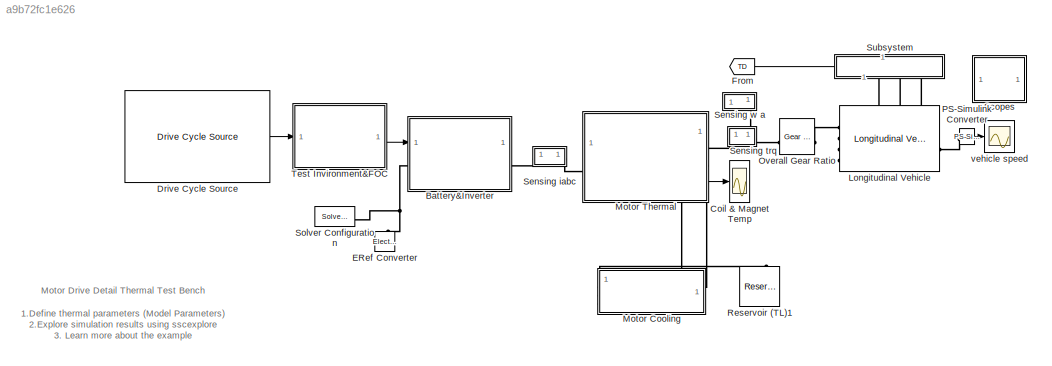
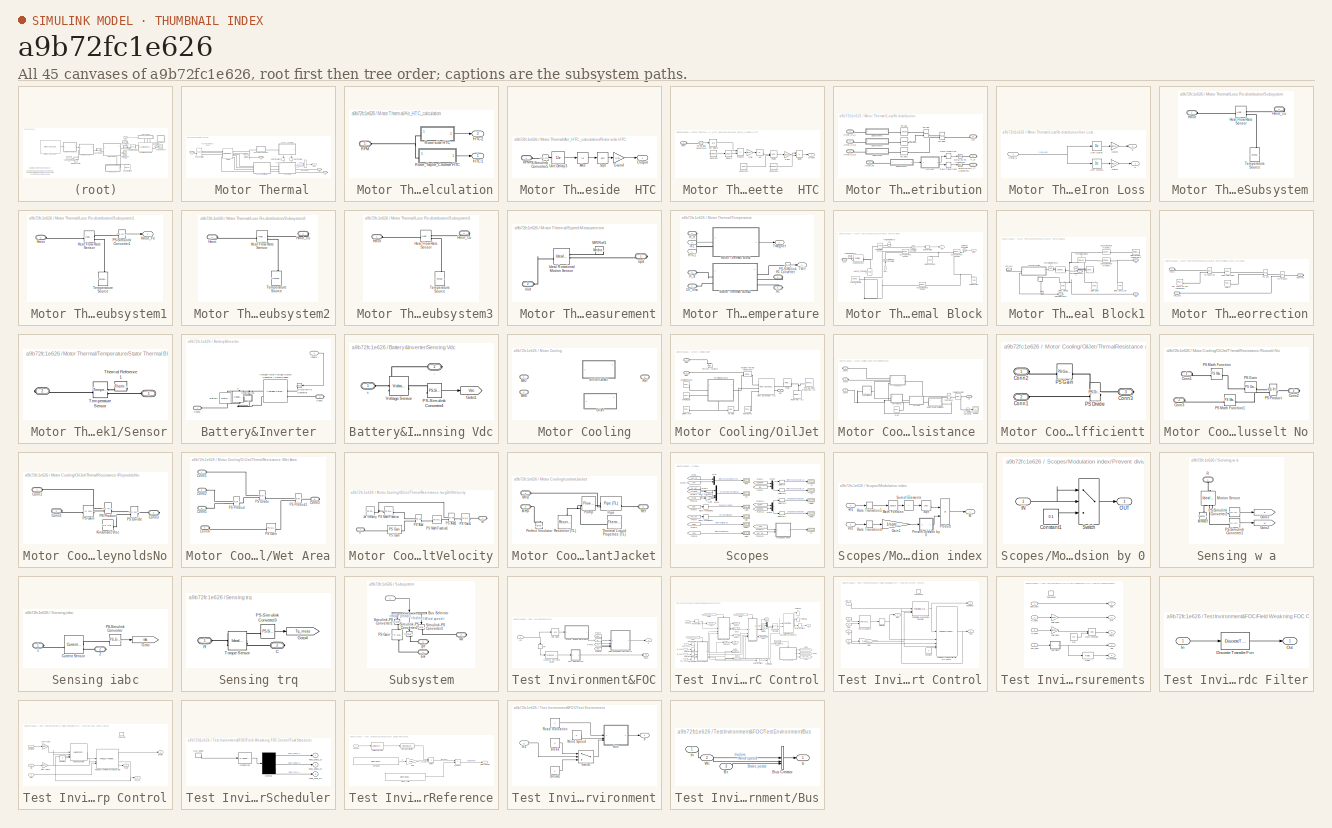
[diagram: thumbnail index - all 45 canvases of the model, root first then tree order]
MODEL slx_a9b72fc1e626
KIND model
CONFIG AbsTol = auto
CONFIG EnableMultiTasking = on
CONFIG FixedStep = electricDrive.PmsmControlParams.Ts
CONFIG MaxStep = auto
CONFIG MinStep = auto
CONFIG PreLoadFcn = PMSMSystemParams;\nMotorThermalParams;
CONFIG RelTol = 1e-3
CONFIG SampleTimeConstraint = Unconstrained
CONFIG SolverName = ode1be
CONFIG StartTime = 0.0
CONFIG StopTime = 50
BLOCK [SubSystem]  Motor Thermal
  NameLocation = top
  PortSchema = {"entries":[{"content":{"sides":[{"content":{"connectorIds":["LConn1"]},"type":"ConnectorPlacement.EquallySpacedRectSide","uuid":"590a444e-8195-4988-a9c8-7c57f93e7add"},{"content":{"connectorIds":["RConn1","Out1"],"side":"RIGHT"},"type":"ConnectorPlacement.EquallySpacedRectSide","uuid":"ff30d583-60d1-4c2f-8cfa-0519d0956af2"},{"content":{"connectorIds":[],"side":"TOP"},"type":"ConnectorPlacement.Eq...<+413ch>
  Tag = PublishSubsystem
  VariantControl = Variant1
BLOCK [PMIOPort]  Motor Thermal/3AC
  Side = Left
BLOCK [SubSystem]  Motor Thermal/Air_HTC_calculation
  NameLocation = right
  PortSchema = {"entries":[{"content":{"sides":[{"content":{"connectorIds":["LConn1"]},"type":"ConnectorPlacement.EquallySpacedRectSide","uuid":"c3fc49c2-0151-484f-b0d8-f4e4a060bcaf"},{"content":{"side":"RIGHT"},"type":"ConnectorPlacement.EquallySpacedRectSide","uuid":"c73251fe-fcad-4c5f-9d27-fb7ac98c9b31"},{"content":{"side":"TOP"},"type":"ConnectorPlacement.EquallySpacedRectSide","uuid":"06ea8515-c1b4-4445-9ea...<+358ch>
BLOCK [Outport]  Motor Thermal/Air_HTC_calculation/HTC1
BLOCK [Outport]  Motor Thermal/Air_HTC_calculation/HTC2
  Port = 2
BLOCK [PMIOPort]  Motor Thermal/Air_HTC_calculation/RPM
  Side = Left
BLOCK [SubSystem]  Motor Thermal/Air_HTC_calculation/Rotor side  HTC
BLOCK [Abs]  Motor Thermal/Air_HTC_calculation/Rotor side  HTC/Abs
  SaturateOnIntegerOverflow = off
BLOCK [Gain]  Motor Thermal/Air_HTC_calculation/Rotor side  HTC/Gain4
  Gain = 0.75
BLOCK [Outport]  Motor Thermal/Air_HTC_calculation/Rotor side  HTC/Output
BLOCK [Reference]  Motor Thermal/Air_HTC_calculation/Rotor side  HTC/PS-Simulink Converter5  REF=nesl_utility/PS-Simulink
Converter
  SourceBlock = nesl_utility/PS-Simulink\nConverter
  SourceType = PS-Simulink\nConverter
BLOCK [PMIOPort]  Motor Thermal/Air_HTC_calculation/Rotor side  HTC/RPM
  Side = Left
BLOCK [Sqrt]  Motor Thermal/Air_HTC_calculation/Rotor side  HTC/Sqrt
BLOCK [UnitDelay]  Motor Thermal/Air_HTC_calculation/Rotor side  HTC/Unit Delay3
  HasFrameUpgradeWarning = on
  SampleTime = -1
BLOCK [SubSystem]  Motor Thermal/Air_HTC_calculation/Rotor_Taylor_Couette  HTC
BLOCK [Abs]  Motor Thermal/Air_HTC_calculation/Rotor_Taylor_Couette  HTC/Abs
  SaturateOnIntegerOverflow = off
BLOCK [Constant]  Motor Thermal/Air_HTC_calculation/Rotor_Taylor_Couette  HTC/Constant
  Value = electricDrive.MotorThermal.rotor_od/1000
BLOCK [Constant]  Motor Thermal/Air_HTC_calculation/Rotor_Taylor_Couette  HTC/Constant1
  Value = electricDrive.MotorThermal.rotor_od/1000
BLOCK [Constant]  Motor Thermal/Air_HTC_calculation/Rotor_Taylor_Couette  HTC/Constant2
  Value = 0.605
BLOCK [Product]  Motor Thermal/Air_HTC_calculation/Rotor_Taylor_Couette  HTC/Divide
  Inputs = */
BLOCK [Gain]  Motor Thermal/Air_HTC_calculation/Rotor_Taylor_Couette  HTC/Gain
  Gain = pi/1.315e-2
BLOCK [Gain]  Motor Thermal/Air_HTC_calculation/Rotor_Taylor_Couette  HTC/Gain4
  Gain = 0.0016
BLOCK [Outport]  Motor Thermal/Air_HTC_calculation/Rotor_Taylor_Couette  HTC/Output
BLOCK [Reference]  Motor Thermal/Air_HTC_calculation/Rotor_Taylor_Couette  HTC/PS-Simulink Converter5  REF=nesl_utility/PS-Simulink
Converter
  SourceBlock = nesl_utility/PS-Simulink\nConverter
  SourceType = PS-Simulink\nConverter
BLOCK [Math]  Motor Thermal/Air_HTC_calculation/Rotor_Taylor_Couette  HTC/Power
  Operator = pow
BLOCK [Product]  Motor Thermal/Air_HTC_calculation/Rotor_Taylor_Couette  HTC/Product
BLOCK [PMIOPort]  Motor Thermal/Air_HTC_calculation/Rotor_Taylor_Couette  HTC/RPM
  Side = Left
BLOCK [Math]  Motor Thermal/Air_HTC_calculation/Rotor_Taylor_Couette  HTC/Square
  Operator = square
BLOCK [UnitDelay]  Motor Thermal/Air_HTC_calculation/Rotor_Taylor_Couette  HTC/Unit Delay3
  HasFrameUpgradeWarning = on
  SampleTime = -1
BLOCK [BusCreator]  Motor Thermal/Bus Creator
  DisplayOption = bar
  InheritFromInputs = on
  Inputs = 2
BLOCK [PMIOPort]  Motor Thermal/H1
  NameLocation = top
  Port = 3
  Side = Right
BLOCK [PMIOPort]  Motor Thermal/H2
  NameLocation = top
  Port = 4
  Side = Right
BLOCK [SubSystem]  Motor Thermal/Loss Re-distribution
  NameLocation = top
BLOCK [PMIOPort]  Motor Thermal/Loss Re-distribution/H_rt
  Port = 7
  Side = Right
BLOCK [PMIOPort]  Motor Thermal/Loss Re-distribution/H_st
  Port = 6
  Side = Right
BLOCK [PMIOPort]  Motor Thermal/Loss Re-distribution/Hmot_Cu_a
  Side = Left
BLOCK [PMIOPort]  Motor Thermal/Loss Re-distribution/Hmot_Cu_b
  Port = 2
  Side = Left
BLOCK [PMIOPort]  Motor Thermal/Loss Re-distribution/Hmot_Cu_c
  Port = 3
  Side = Left
BLOCK [PMIOPort]  Motor Thermal/Loss Re-distribution/Hmot_Fe
  Port = 4
  Side = Left
BLOCK [PMIOPort]  Motor Thermal/Loss Re-distribution/I2R
  NameLocation = top
  Port = 5
  Side = Right
BLOCK [SubSystem]  Motor Thermal/Loss Re-distribution/Iron Loss
BLOCK [Gain]  Motor Thermal/Loss Re-distribution/Iron Loss/Gain1
  Gain = electricDrive.MotorThermal.vFractBridge
BLOCK [Gain]  Motor Thermal/Loss Re-distribution/Iron Loss/Gain2
  Gain = electricDrive.MotorThermal.vFractTooth
BLOCK [Inport]  Motor Thermal/Loss Re-distribution/Iron Loss/Hmot_s
  NameLocation = top
BLOCK [UnitDelay]  Motor Thermal/Loss Re-distribution/Iron Loss/Unit Delay
  HasFrameUpgradeWarning = on
  SampleTime = -1
BLOCK [UnitDelay]  Motor Thermal/Loss Re-distribution/Iron Loss/Unit Delay1
  HasFrameUpgradeWarning = on
  SampleTime = -1
BLOCK [Outport]  Motor Thermal/Loss Re-distribution/Iron Loss/rt
  NameLocation = top
  Port = 2
BLOCK [Outport]  Motor Thermal/Loss Re-distribution/Iron Loss/st
  NameLocation = top
BLOCK [Reference]  Motor Thermal/Loss Re-distribution/PS Abs  REF=fl_lib/Physical Signals/Nonlinear Operators/PS Abs
  SourceBlock = fl_lib/Physical Signals/Nonlinear Operators/PS Abs
  SourceType = PS Abs
BLOCK [Reference]  Motor Thermal/Loss Re-distribution/PS Abs1  REF=fl_lib/Physical Signals/Nonlinear Operators/PS Abs
  SourceBlock = fl_lib/Physical Signals/Nonlinear Operators/PS Abs
  SourceType = PS Abs
BLOCK [Reference]  Motor Thermal/Loss Re-distribution/PS Abs2  REF=fl_lib/Physical Signals/Nonlinear Operators/PS Abs
  SourceBlock = fl_lib/Physical Signals/Nonlinear Operators/PS Abs
  SourceType = PS Abs
BLOCK [Reference]  Motor Thermal/Loss Re-distribution/PS Add  REF=fl_lib/Physical Signals/Functions/PS Add
  SourceBlock = fl_lib/Physical Signals/Functions/PS Add
  SourceType = PS Add
BLOCK [Reference]  Motor Thermal/Loss Re-distribution/PS Add1  REF=fl_lib/Physical Signals/Functions/PS Add
  SourceBlock = fl_lib/Physical Signals/Functions/PS Add
  SourceType = PS Add
BLOCK [RateTransition]  Motor Thermal/Loss Re-distribution/Rate Transition
BLOCK [RateTransition]  Motor Thermal/Loss Re-distribution/Rate Transition2
BLOCK [Reference]  Motor Thermal/Loss Re-distribution/Simulink-PS Converter  REF=nesl_utility/Simulink-PS
Converter
  SourceBlock = nesl_utility/Simulink-PS\nConverter
  SourceType = Simulink-PS\nConverter
BLOCK [Reference]  Motor Thermal/Loss Re-distribution/Simulink-PS Converter1  REF=nesl_utility/Simulink-PS
Converter
  SourceBlock = nesl_utility/Simulink-PS\nConverter
  SourceType = Simulink-PS\nConverter
BLOCK [SubSystem]  Motor Thermal/Loss Re-distribution/Subsystem
BLOCK [Reference]  Motor Thermal/Loss Re-distribution/Subsystem/Heat Flow Rate Sensor  REF=fl_lib/Thermal/Thermal Sensors/Heat Flow Rate
Sensor
  SourceBlock = fl_lib/Thermal/Thermal Sensors/Heat Flow Rate\nSensor
  SourceType = Heat Flow Rate\nSensor
BLOCK [PMIOPort]  Motor Thermal/Loss Re-distribution/Subsystem/Hmot
  Side = Left
BLOCK [PMIOPort]  Motor Thermal/Loss Re-distribution/Subsystem/Hmot_cu
  NameLocation = top
  Port = 2
  Side = Right
BLOCK [Reference]  Motor Thermal/Loss Re-distribution/Subsystem/Temperature Source  REF=fl_lib/Thermal/Thermal Sources/Temperature Source
  NameLocation = right
  SourceBlock = fl_lib/Thermal/Thermal Sources/Temperature Source
  SourceType = Temperature Source
BLOCK [SubSystem]  Motor Thermal/Loss Re-distribution/Subsystem1
BLOCK [Reference]  Motor Thermal/Loss Re-distribution/Subsystem1/Heat Flow Rate Sensor  REF=fl_lib/Thermal/Thermal Sensors/Heat Flow Rate
Sensor
  SourceBlock = fl_lib/Thermal/Thermal Sensors/Heat Flow Rate\nSensor
  SourceType = Heat Flow Rate\nSensor
BLOCK [PMIOPort]  Motor Thermal/Loss Re-distribution/Subsystem1/Hmot
  Side = Left
BLOCK [Outport]  Motor Thermal/Loss Re-distribution/Subsystem1/Hmot_Fe
BLOCK [Reference]  Motor Thermal/Loss Re-distribution/Subsystem1/PS-Simulink Converter1  REF=nesl_utility/PS-Simulink
Converter
  SourceBlock = nesl_utility/PS-Simulink\nConverter
  SourceType = PS-Simulink\nConverter
BLOCK [Reference]  Motor Thermal/Loss Re-distribution/Subsystem1/Temperature Source  REF=fl_lib/Thermal/Thermal Sources/Temperature Source
  NameLocation = right
  SourceBlock = fl_lib/Thermal/Thermal Sources/Temperature Source
  SourceType = Temperature Source
BLOCK [SubSystem]  Motor Thermal/Loss Re-distribution/Subsystem2
BLOCK [Reference]  Motor Thermal/Loss Re-distribution/Subsystem2/Heat Flow Rate Sensor  REF=fl_lib/Thermal/Thermal Sensors/Heat Flow Rate
Sensor
  SourceBlock = fl_lib/Thermal/Thermal Sensors/Heat Flow Rate\nSensor
  SourceType = Heat Flow Rate\nSensor
BLOCK [PMIOPort]  Motor Thermal/Loss Re-distribution/Subsystem2/Hmot
  Side = Left
BLOCK [PMIOPort]  Motor Thermal/Loss Re-distribution/Subsystem2/Hmot_cu
  NameLocation = top
  Port = 2
  Side = Right
BLOCK [Reference]  Motor Thermal/Loss Re-distribution/Subsystem2/Temperature Source  REF=fl_lib/Thermal/Thermal Sources/Temperature Source
  NameLocation = right
  SourceBlock = fl_lib/Thermal/Thermal Sources/Temperature Source
  SourceType = Temperature Source
BLOCK [SubSystem]  Motor Thermal/Loss Re-distribution/Subsystem3
BLOCK [Reference]  Motor Thermal/Loss Re-distribution/Subsystem3/Heat Flow Rate Sensor  REF=fl_lib/Thermal/Thermal Sensors/Heat Flow Rate
Sensor
  SourceBlock = fl_lib/Thermal/Thermal Sensors/Heat Flow Rate\nSensor
  SourceType = Heat Flow Rate\nSensor
BLOCK [PMIOPort]  Motor Thermal/Loss Re-distribution/Subsystem3/Hmot
  Side = Left
BLOCK [PMIOPort]  Motor Thermal/Loss Re-distribution/Subsystem3/Hmot_Cu
  NameLocation = top
  Port = 2
  Side = Right
BLOCK [Reference]  Motor Thermal/Loss Re-distribution/Subsystem3/Temperature Source  REF=fl_lib/Thermal/Thermal Sources/Temperature Source
  NameLocation = right
  SourceBlock = fl_lib/Thermal/Thermal Sources/Temperature Source
  SourceType = Temperature Source
BLOCK [Reference]  Motor Thermal/MRRef  REF=fl_lib/Mechanical/Rotational Elements/Mechanical
Rotational Reference
  NameLocation = right
  SourceBlock = fl_lib/Mechanical/Rotational Elements/Mechanical\nRotational Reference
  SourceType = Mechanical\nRotational Reference
BLOCK [Outport]  Motor Thermal/MotT
BLOCK [Reference]  Motor Thermal/PMSM  REF=ee_lib/Electromechanical/Permanent Magnet/FEM-Parameterized
PMSM
  SourceBlock = ee_lib/Electromechanical/Permanent Magnet/FEM-Parameterized\nPMSM
  SourceType = FEM-Parameterized\nPMSM
BLOCK [Reference]  Motor Thermal/Phase Splitter  REF=ee_lib/Connectors &
References/Phase Splitter
  SourceBlock = ee_lib/Connectors &\nReferences/Phase Splitter
  SourceType = Phase Splitter
BLOCK [PMIOPort]  Motor Thermal/R
  Port = 2
  Side = Right
BLOCK [RateTransition]  Motor Thermal/Rate Transition
  NameLocation = left
BLOCK [RateTransition]  Motor Thermal/Rate Transition1
  NameLocation = left
BLOCK [SubSystem]  Motor Thermal/Speed Measurement
  NameLocation = top
BLOCK [Reference]  Motor Thermal/Speed Measurement/Ideal Rotational Motion Sensor  REF=fl_lib/Mechanical/Mechanical Sensors/Ideal Rotational
Motion Sensor
  SourceBlock = fl_lib/Mechanical/Mechanical Sensors/Ideal Rotational\nMotion Sensor
  SourceType = Ideal Rotational\nMotion Sensor
BLOCK [Reference]  Motor Thermal/Speed Measurement/MRRef1  REF=fl_lib/Mechanical/Rotational Elements/Mechanical
Rotational Reference
  NameLocation = top
  SourceBlock = fl_lib/Mechanical/Rotational Elements/Mechanical\nRotational Reference
  SourceType = Mechanical\nRotational Reference
BLOCK [PMIOPort]  Motor Thermal/Speed Measurement/mot
  Port = 2
  Side = Left
BLOCK [PMIOPort]  Motor Thermal/Speed Measurement/spd
  Side = Right
BLOCK [SubSystem]  Motor Thermal/Temperature
  PortSchema = {"entries":[{"content":{"sides":[{"content":{"connectorIds":["LConn1","LConn2","LConn3"]},"type":"ConnectorPlacement.EquallySpacedRectSide","uuid":"fee72484-960d-4cd4-9296-e38678962aa1"},{"content":{"connectorIds":["Out1","Out2","RConn1","RConn2"],"side":"RIGHT"},"type":"ConnectorPlacement.EquallySpacedRectSide","uuid":"5fc115b4-63fd-47d3-871d-1c82ac52ac43"},{"content":{"connectorIds":["In1","In2"...<+441ch>
BLOCK [PMIOPort]  Motor Thermal/Temperature/H1
  NameLocation = top
  Port = 4
  Side = Right
BLOCK [PMIOPort]  Motor Thermal/Temperature/H2
  NameLocation = top
  Port = 5
  Side = Right
BLOCK [Inport]  Motor Thermal/Temperature/HTC1
BLOCK [PMIOPort]  Motor Thermal/Temperature/H_rt
  Port = 2
  Side = Left
BLOCK [PMIOPort]  Motor Thermal/Temperature/H_st
  Port = 3
  Side = Left
BLOCK [PMIOPort]  Motor Thermal/Temperature/I2r_loss
  Side = Left
BLOCK [Inport]  Motor Thermal/Temperature/In1
  Port = 2
BLOCK [Reference]  Motor Thermal/Temperature/PS-Simulink Converter  REF=nesl_utility/PS-Simulink
Converter
  SourceBlock = nesl_utility/PS-Simulink\nConverter
  SourceType = PS-Simulink\nConverter
BLOCK [SubSystem]  Motor Thermal/Temperature/Rotor Thermal Block
  NameLocation = top
  PortSchema = {"entries":[{"content":{"sides":[{"content":{"connectorIds":["Out1"]},"type":"ConnectorPlacement.EquallySpacedRectSide","uuid":"a0a486ff-95e2-43b7-8e3c-0cd0a05f759b"},{"content":{"connectorIds":["RConn1","In1","In2"],"side":"RIGHT"},"type":"ConnectorPlacement.EquallySpacedRectSide","uuid":"7508b6f9-91f5-4797-b9a6-d16ad4f8253e"},{"content":{"connectorIds":[],"side":"TOP"},"type":"ConnectorPlacement...<+255ch>
BLOCK [Reference]  Motor Thermal/Temperature/Rotor Thermal Block/Conductive Heat Transfer  REF=fl_lib/Thermal/Thermal Elements/Conductive Heat
Transfer
  SourceBlock = fl_lib/Thermal/Thermal Elements/Conductive Heat\nTransfer
  SourceType = Conductive Heat\nTransfer
BLOCK [Reference]  Motor Thermal/Temperature/Rotor Thermal Block/Convective Heat Transfer  REF=fl_lib/Thermal/Thermal Elements/Convective Heat
Transfer
  SourceBlock = fl_lib/Thermal/Thermal Elements/Convective Heat\nTransfer
  SourceType = Convective Heat\nTransfer
BLOCK [Reference]  Motor Thermal/Temperature/Rotor Thermal Block/Convective Heat Transfer1  REF=fl_lib/Thermal/Thermal Elements/Convective Heat
Transfer
  NameLocation = top
  SourceBlock = fl_lib/Thermal/Thermal Elements/Convective Heat\nTransfer
  SourceType = Convective Heat\nTransfer
BLOCK [PMIOPort]  Motor Thermal/Temperature/Rotor Thermal Block/H_rot
  NameLocation = top
  Side = Right
BLOCK [Reference]  Motor Thermal/Temperature/Rotor Thermal Block/Heat Flow Source  REF=fl_lib/Thermal/Thermal Sources/Controlled Heat Flow
Rate Source
  NameLocation = top
  SourceBlock = fl_lib/Thermal/Thermal Sources/Controlled Heat Flow\nRate Source
  SourceType = Controlled Heat Flow\nRate Source
BLOCK [Reference]  Motor Thermal/Temperature/Rotor Thermal Block/Magnet_Temperature   REF=fl_lib/Thermal/Thermal Elements/Thermal Mass
  NameLocation = left
  SourceBlock = fl_lib/Thermal/Thermal Elements/Thermal Mass
  SourceType = Thermal Mass
BLOCK [Reference]  Motor Thermal/Temperature/Rotor Thermal Block/Motor housing air  REF=fl_lib/Thermal/Thermal Sources/Temperature Source
  NameLocation = right
  SourceBlock = fl_lib/Thermal/Thermal Sources/Temperature Source
  SourceType = Temperature Source
BLOCK [Reference]  Motor Thermal/Temperature/Rotor Thermal Block/PS-Simulink Converter  REF=nesl_utility/PS-Simulink
Converter
  SourceBlock = nesl_utility/PS-Simulink\nConverter
  SourceType = PS-Simulink\nConverter
BLOCK [RateTransition]  Motor Thermal/Temperature/Rotor Thermal Block/Rate Transition
BLOCK [Reference]  Motor Thermal/Temperature/Rotor Thermal Block/Rotor Back Iron  REF=fl_lib/Thermal/Thermal Elements/Thermal Mass
  NameLocation = right
  SourceBlock = fl_lib/Thermal/Thermal Elements/Thermal Mass
  SourceType = Thermal Mass
BLOCK [Reference]  Motor Thermal/Temperature/Rotor Thermal Block/Simulink-PS Converter1  REF=nesl_utility/Simulink-PS
Converter
  NameLocation = top
  SourceBlock = nesl_utility/Simulink-PS\nConverter
  SourceType = Simulink-PS\nConverter
BLOCK [Reference]  Motor Thermal/Temperature/Rotor Thermal Block/Simulink-PS Converter3  REF=nesl_utility/Simulink-PS
Converter
  NameLocation = right
  SourceBlock = nesl_utility/Simulink-PS\nConverter
  SourceType = Simulink-PS\nConverter
BLOCK [Reference]  Motor Thermal/Temperature/Rotor Thermal Block/Solver Configuration  REF=nesl_utility/Solver
Configuration
  SourceBlock = nesl_utility/Solver\nConfiguration
  SourceType = Solver\nConfiguration
BLOCK [Reference]  Motor Thermal/Temperature/Rotor Thermal Block/Temperature Sensor  REF=fl_lib/Thermal/Thermal Sensors/Temperature Sensor
  SourceBlock = fl_lib/Thermal/Thermal Sensors/Temperature Sensor
  SourceType = Temperature Sensor
BLOCK [Reference]  Motor Thermal/Temperature/Rotor Thermal Block/Thermal Reference  REF=fl_lib/Thermal/Thermal Elements/Thermal Reference
  SourceBlock = fl_lib/Thermal/Thermal Elements/Thermal Reference
  SourceType = Thermal Reference
BLOCK [Reference]  Motor Thermal/Temperature/Rotor Thermal Block/Thermal Reference1  REF=fl_lib/Thermal/Thermal Elements/Thermal Reference
  NameLocation = top
  SourceBlock = fl_lib/Thermal/Thermal Elements/Thermal Reference
  SourceType = Thermal Reference
BLOCK [Inport]  Motor Thermal/Temperature/Rotor Thermal Block/htc1
  NameLocation = top
BLOCK [Inport]  Motor Thermal/Temperature/Rotor Thermal Block/htc2
  NameLocation = right
  Port = 2
BLOCK [Outport]  Motor Thermal/Temperature/Rotor Thermal Block/mt
BLOCK [SubSystem]  Motor Thermal/Temperature/Stator Thermal Block1
BLOCK [Reference]  Motor Thermal/Temperature/Stator Thermal Block1/   REF=fl_lib/Thermal/Thermal Sources/Controlled Heat Flow
Rate Source
  SourceBlock = fl_lib/Thermal/Thermal Sources/Controlled Heat Flow\nRate Source
  SourceType = Controlled Heat Flow\nRate Source
BLOCK [Reference]  Motor Thermal/Temperature/Stator Thermal Block1/    REF=fl_lib/Thermal/Thermal Sources/Controlled Heat Flow
Rate Source
  SourceBlock = fl_lib/Thermal/Thermal Sources/Controlled Heat Flow\nRate Source
  SourceType = Controlled Heat Flow\nRate Source
BLOCK [PMIOPort]  Motor Thermal/Temperature/Stator Thermal Block1/Coil Temperature
  Side = Left
BLOCK [Reference]  Motor Thermal/Temperature/Stator Thermal Block1/Conductive Heat Transfer1  REF=fl_lib/Thermal/Thermal Elements/Conductive Heat
Transfer
  SourceBlock = fl_lib/Thermal/Thermal Elements/Conductive Heat\nTransfer
  SourceType = Conductive Heat\nTransfer
BLOCK [Reference]  Motor Thermal/Temperature/Stator Thermal Block1/Convective Heat Transfer2  REF=fl_lib/Thermal/Thermal Elements/Convective Heat
Transfer
  SourceBlock = fl_lib/Thermal/Thermal Elements/Convective Heat\nTransfer
  SourceType = Convective Heat\nTransfer
BLOCK [PMIOPort]  Motor Thermal/Temperature/Stator Thermal Block1/H1
  NameLocation = top
  Port = 2
  Side = Left
BLOCK [PMIOPort]  Motor Thermal/Temperature/Stator Thermal Block1/H2
  NameLocation = top
  Port = 5
  Side = Left
BLOCK [PMIOPort]  Motor Thermal/Temperature/Stator Thermal Block1/I2R_Loss
  Port = 4
  Side = Right
BLOCK [PMIOPort]  Motor Thermal/Temperature/Stator Thermal Block1/IronLoss
  Port = 3
  Side = Right
BLOCK [SubSystem]  Motor Thermal/Temperature/Stator Thermal Block1/Loss Correction
  NameLocation = top
BLOCK [PMIOPort]  Motor Thermal/Temperature/Stator Thermal Block1/Loss Correction/HCorrect
  NameLocation = top
  Port = 3
  Side = Right
BLOCK [PMIOPort]  Motor Thermal/Temperature/Stator Thermal Block1/Loss Correction/I2R_Loss
  Side = Left
BLOCK [Reference]  Motor Thermal/Temperature/Stator Thermal Block1/Loss Correction/PS Add  REF=fl_lib/Physical Signals/Functions/PS Add
  SourceBlock = fl_lib/Physical Signals/Functions/PS Add
  SourceType = PS Add
BLOCK [Reference]  Motor Thermal/Temperature/Stator Thermal Block1/Loss Correction/PS Product  REF=fl_lib/Physical Signals/Functions/PS Product
  SourceBlock = fl_lib/Physical Signals/Functions/PS Product
  SourceType = PS Product
BLOCK [Reference]  Motor Thermal/Temperature/Stator Thermal Block1/Loss Correction/PS Subtract  REF=fl_lib/Physical Signals/Functions/PS Subtract
  SourceBlock = fl_lib/Physical Signals/Functions/PS Subtract
  SourceType = PS Subtract
BLOCK [Reference]  Motor Thermal/Temperature/Stator Thermal Block1/Loss Correction/Ref Temp Of loss calculations  REF=fl_lib/Physical Signals/Sources/PS Constant
  NameLocation = left
  SourceBlock = fl_lib/Physical Signals/Sources/PS Constant
  SourceType = PS Constant
BLOCK [PMIOPort]  Motor Thermal/Temperature/Stator Thermal Block1/Loss Correction/Temp
  Port = 2
  Side = Left
BLOCK [Reference]  Motor Thermal/Temperature/Stator Thermal Block1/Loss Correction/add 1  REF=fl_lib/Physical Signals/Sources/PS Constant
  SourceBlock = fl_lib/Physical Signals/Sources/PS Constant
  SourceType = PS Constant
BLOCK [Reference]  Motor Thermal/Temperature/Stator Thermal Block1/Loss Correction/joule coefficient  REF=fl_lib/Physical Signals/Functions/PS Gain
  SourceBlock = fl_lib/Physical Signals/Functions/PS Gain
  SourceType = PS Gain
BLOCK [Reference]  Motor Thermal/Temperature/Stator Thermal Block1/MotorHousing_Temperature  REF=fl_lib/Thermal/Thermal Sources/Temperature Source
  NameLocation = top
  SourceBlock = fl_lib/Thermal/Thermal Sources/Temperature Source
  SourceType = Temperature Source
BLOCK [SubSystem]  Motor Thermal/Temperature/Stator Thermal Block1/Sensor
  NameLocation = left
  PortSchema = {"entries":[{"content":{"sides":[{"content":{"connectorIds":["LConn1"]},"type":"ConnectorPlacement.EquallySpacedRectSide","uuid":"2a9c4c46-5e98-4ad3-ac1b-1643fab919e9"},{"content":{"connectorIds":[],"side":"RIGHT"},"type":"ConnectorPlacement.EquallySpacedRectSide","uuid":"818e06c0-624d-478e-bbcc-fcb04ee6018d"},{"content":{"connectorIds":[],"side":"TOP"},"type":"ConnectorPlacement.EquallySpacedRect...<+389ch>
BLOCK [PMIOPort]  Motor Thermal/Temperature/Stator Thermal Block1/Sensor/ 
  Port = 2
  Side = Right
BLOCK [PMIOPort]  Motor Thermal/Temperature/Stator Thermal Block1/Sensor/  
  NameLocation = top
  Side = Left
BLOCK [Reference]  Motor Thermal/Temperature/Stator Thermal Block1/Sensor/Temperature Sensor  REF=fl_lib/Thermal/Thermal Sensors/Temperature Sensor
  SourceBlock = fl_lib/Thermal/Thermal Sensors/Temperature Sensor
  SourceType = Temperature Sensor
BLOCK [Reference]  Motor Thermal/Temperature/Stator Thermal Block1/Sensor/Thermal Reference1  REF=fl_lib/Thermal/Thermal Elements/Thermal Reference
  NameLocation = top
  SourceBlock = fl_lib/Thermal/Thermal Elements/Thermal Reference
  SourceType = Thermal Reference
BLOCK [Reference]  Motor Thermal/Temperature/Stator Thermal Block1/Stator_Back_Iron  REF=fl_lib/Thermal/Thermal Elements/Thermal Mass
  NameLocation = right
  SourceBlock = fl_lib/Thermal/Thermal Elements/Thermal Mass
  SourceType = Thermal Mass
BLOCK [Reference]  Motor Thermal/Temperature/Stator Thermal Block1/Stator_teeth  REF=fl_lib/Thermal/Thermal Elements/Thermal Mass
  NameLocation = left
  SourceBlock = fl_lib/Thermal/Thermal Elements/Thermal Mass
  SourceType = Thermal Mass
BLOCK [Reference]  Motor Thermal/Temperature/Stator Thermal Block1/Stator_winding  REF=fl_lib/Thermal/Thermal Elements/Thermal Mass
  NameLocation = left
  SourceBlock = fl_lib/Thermal/Thermal Elements/Thermal Mass
  SourceType = Thermal Mass
BLOCK [Reference]  Motor Thermal/Temperature/Stator Thermal Block1/Thermal Reference2  REF=fl_lib/Thermal/Thermal Elements/Thermal Reference
  SourceBlock = fl_lib/Thermal/Thermal Elements/Thermal Reference
  SourceType = Thermal Reference
BLOCK [Reference]  Motor Thermal/Temperature/Stator Thermal Block1/Thermal Reference3  REF=fl_lib/Thermal/Thermal Elements/Thermal Reference
  SourceBlock = fl_lib/Thermal/Thermal Elements/Thermal Reference
  SourceType = Thermal Reference
BLOCK [Reference]  Motor Thermal/Temperature/Stator Thermal Block1/Thermal Resistance  REF=fl_lib/Thermal/Thermal Elements/Thermal Resistance
  NameLocation = top
  SourceBlock = fl_lib/Thermal/Thermal Elements/Thermal Resistance
  SourceType = Thermal Resistance
BLOCK [Outport]  Motor Thermal/Temperature/Tcoil
BLOCK [Outport]  Motor Thermal/Temperature/Tmagnet
  Port = 2
BLOCK [SubSystem] Battery&Inverter
  NameLocation = top
BLOCK [Reference] Battery&Inverter/Average-Value Voltage Source Converter (Three-Phase)  REF=ee_lib/Semiconductors &
Converters/Converters/Average-Value
Voltage Source
Converter
(Three-Phase)
  NameLocation = top
  SourceBlock = ee_lib/Semiconductors &\nConverters/Converters/Average-Value\nVoltage Source\nConverter\n(Three-Phase)
  SourceType = Average-Value\nVoltage Source\nConverter\n(Three-Phase)
BLOCK [Reference] Battery&Inverter/Battery  REF=batteryecm_lib/Battery
  NameLocation = left
  SourceBlock = batteryecm_lib/Battery
  SourceType = Battery
BLOCK [Reference] Battery&Inverter/C  REF=fl_lib/Electrical/Electrical Elements/Capacitor
  NameLocation = left
  SourceBlock = fl_lib/Electrical/Electrical Elements/Capacitor
  SourceType = Capacitor
BLOCK [PMIOPort] Battery&Inverter/Conn1
  Port = 2
  Side = Right
BLOCK [PMIOPort] Battery&Inverter/Conn2
  Side = Left
BLOCK [SubSystem] Battery&Inverter/Sensing Vdc
  NameLocation = right
BLOCK [PMIOPort] Battery&Inverter/Sensing Vdc/+
  Side = Left
BLOCK [PMIOPort] Battery&Inverter/Sensing Vdc/-
  Port = 2
  Side = Right
BLOCK [Goto] Battery&Inverter/Sensing Vdc/Goto1
  GotoTag = Vdc
  TagVisibility = global
BLOCK [Reference] Battery&Inverter/Sensing Vdc/PS-Simulink Converter4  REF=nesl_utility/PS-Simulink
Converter
  SourceBlock = nesl_utility/PS-Simulink\nConverter
  SourceType = PS-Simulink\nConverter
BLOCK [Reference] Battery&Inverter/Sensing Vdc/Voltage Sensor  REF=fl_lib/Electrical/Electrical Sensors/Voltage Sensor
  SourceBlock = fl_lib/Electrical/Electrical Sensors/Voltage Sensor
  SourceType = Voltage Sensor
BLOCK [Reference] Battery&Inverter/Simulink-PS Converter  REF=nesl_utility/Simulink-PS
Converter
  NameLocation = top
  SourceBlock = nesl_utility/Simulink-PS\nConverter
  SourceType = Simulink-PS\nConverter
BLOCK [Inport] Battery&Inverter/input0
BLOCK [Scope] Coil & Magnet Temp
  Floating = off
  NumInputPorts = 1
  ScopeSpecificationString = Simulink.scopes.TimeScopeBlockCfg('CurrentConfiguration', extmgr.ConfigurationSet(extmgr.Configuration('Core','General UI',true),extmgr.Configuration('Core','Source UI',true),extmgr.Configuration('Sources','WiredSimulink',true,'DataLoggingVariableName','ScopeData1'),extmgr.Configuration('Visuals','Time Domain',true,'SerializedDisplays',{struct('MinYLimReal','-45.49094','MaxYLimReal','409.41849','Y...<+1497ch>
BLOCK [Reference] Drive Cycle Source  REF=autolibshared/Drive Cycle Source
  AttributesFormatString = %<cycleVar> (%<tfinal>)
  LibrarySourceBlock = autolibscenario/Drive Cycle Source
  SourceBlock = autolibshared/Drive Cycle Source
  SourceType = Drive Cycle Source
BLOCK [Reference] ERef Converter  REF=fl_lib/Electrical/Electrical Elements/Electrical Reference
  NameLocation = right
  SourceBlock = fl_lib/Electrical/Electrical Elements/Electrical Reference
  SourceType = Electrical Reference
BLOCK [From] From
  GotoTag = TD
  TagVisibility = global
BLOCK [Reference] Longitudinal Vehicle  REF=sdl_lib/Tires & Vehicles/Longitudinal Vehicle
  SourceBlock = sdl_lib/Tires & Vehicles/Longitudinal Vehicle
  SourceType = Longitudinal Vehicle
BLOCK [SubSystem] Motor Cooling
  LabelModeActiveChoice = true
  PortSchema = {"entries":[{"content":{"sides":[{"content":{"connectorIds":[]},"type":"ConnectorPlacement.EquallySpacedRectSide","uuid":"fad2e2e2-c8a8-4ae7-a5e0-e2d04801ad81"},{"content":{"connectorIds":[],"side":"RIGHT"},"type":"ConnectorPlacement.EquallySpacedRectSide","uuid":"a876eae4-26d9-44a3-9dd3-410a35dafbf1"},{"content":{"connectorIds":["LConn1","LConn2","LConn3"],"side":"TOP"},"type":"ConnectorPlacement...<+255ch>
  ShowPortLabels = none
  Variant = on
  VariantControlMode = label
BLOCK [PMIOPort] Motor Cooling/MHD
  Side = Left
BLOCK [PMIOPort] Motor Cooling/MHJ
  Port = 2
  Side = Left
BLOCK [SubSystem] Motor Cooling/OilJet
  NameLocation = top
  VariantControl = false
BLOCK [Reference] Motor Cooling/OilJet/ Oilflow rate   REF=fl_lib/Physical Signals/Sources/PS Constant
  SourceBlock = fl_lib/Physical Signals/Sources/PS Constant
  SourceType = PS Constant
BLOCK [Reference] Motor Cooling/OilJet/Heat Exchanger (TL)  REF=SimscapeFluids_lib/Fluid Network
Interfaces/Heat Exchangers/Heat Exchanger (TL)
  SourceBlock = SimscapeFluids_lib/Fluid Network\nInterfaces/Heat Exchangers/Heat Exchanger (TL)
  SourceType = Heat Exchanger (TL)
BLOCK [Reference] Motor Cooling/OilJet/HeatExHTC  REF=fl_lib/Physical Signals/Sources/PS Constant
  SourceBlock = fl_lib/Physical Signals/Sources/PS Constant
  SourceType = PS Constant
BLOCK [PMIOPort] Motor Cooling/OilJet/MHD
  Port = 2
  Side = Left
BLOCK [PMIOPort] Motor Cooling/OilJet/MHJ
  Side = Left
BLOCK [Reference] Motor Cooling/OilJet/PS Gain  REF=fl_lib/Physical Signals/Functions/PS Gain
  SourceBlock = fl_lib/Physical Signals/Functions/PS Gain
  SourceType = PS Gain
BLOCK [Reference] Motor Cooling/OilJet/Perfect Insulator  REF=fl_lib/Thermal/Thermal Elements/Perfect Insulator
  NameLocation = right
  SourceBlock = fl_lib/Thermal/Thermal Elements/Perfect Insulator
  SourceType = Perfect Insulator
BLOCK [Reference] Motor Cooling/OilJet/Pump  REF=fl_lib/Thermal Liquid/Sources/Flow Rate Source
(TL)
  NameLocation = top
  SourceBlock = fl_lib/Thermal Liquid/Sources/Flow Rate Source\n(TL)
  SourceType = Flow Rate Source\n(TL)
BLOCK [PMIOPort] Motor Cooling/OilJet/Ref
  NameLocation = top
  Port = 3
  Side = Left
BLOCK [Reference] Motor Cooling/OilJet/Reservoir (TL)  REF=fl_lib/Thermal Liquid/Elements/Reservoir (TL)
  NameLocation = right
  SourceBlock = fl_lib/Thermal Liquid/Elements/Reservoir (TL)
  SourceType = Reservoir (TL)
BLOCK [Reference] Motor Cooling/OilJet/Thermal Liquid Properties (TL)  REF=SimscapeFluids_lib/Thermal Liquid/Utilities/Thermal Liquid
Properties (TL)
  SourceBlock = SimscapeFluids_lib/Thermal Liquid/Utilities/Thermal Liquid\nProperties (TL)
  SourceType = Thermal Liquid\nProperties (TL)
BLOCK [SubSystem] Motor Cooling/OilJet/ThrmalResistance 
  NameLocation = top
  PortSchema = {"entries":[{"content":{"sides":[{"content":{"connectorIds":["LConn1","LConn2"]},"type":"ConnectorPlacement.EquallySpacedRectSide","uuid":"baf5ff6f-2bbb-4e60-9dad-e00baf500c6c"},{"content":{"connectorIds":["RConn1"],"side":"RIGHT"},"type":"ConnectorPlacement.EquallySpacedRectSide","uuid":"04d231ab-fa8a-490b-9fb3-01902b632b73"},{"content":{"connectorIds":[],"side":"TOP"},"type":"ConnectorPlacement....<+406ch>
BLOCK [PMIOPort] Motor Cooling/OilJet/ThrmalResistance /Conn1
  Port = 4
  Side = Right
BLOCK [PMIOPort] Motor Cooling/OilJet/ThrmalResistance /Conn2
  Side = Left
BLOCK [PMIOPort] Motor Cooling/OilJet/ThrmalResistance /Conn3
  Port = 2
  Side = Left
BLOCK [SubSystem] Motor Cooling/OilJet/ThrmalResistance /HeatTransferCoefficientt
BLOCK [PMIOPort] Motor Cooling/OilJet/ThrmalResistance /HeatTransferCoefficientt/Conn1
  Port = 2
  Side = Left
BLOCK [PMIOPort] Motor Cooling/OilJet/ThrmalResistance /HeatTransferCoefficientt/Conn2
  Side = Left
BLOCK [PMIOPort] Motor Cooling/OilJet/ThrmalResistance /HeatTransferCoefficientt/Conn3
  Port = 3
  Side = Right
BLOCK [Reference] Motor Cooling/OilJet/ThrmalResistance /HeatTransferCoefficientt/PS Divide  REF=fl_lib/Physical Signals/Functions/PS Divide
  SourceBlock = fl_lib/Physical Signals/Functions/PS Divide
  SourceType = PS Divide
BLOCK [Reference] Motor Cooling/OilJet/ThrmalResistance /HeatTransferCoefficientt/PS Gain  REF=fl_lib/Physical Signals/Functions/PS Gain
  SourceBlock = fl_lib/Physical Signals/Functions/PS Gain
  SourceType = PS Gain
BLOCK [SubSystem] Motor Cooling/OilJet/ThrmalResistance /Nusselt No
BLOCK [PMIOPort] Motor Cooling/OilJet/ThrmalResistance /Nusselt No/Conn1
  Side = Left
BLOCK [PMIOPort] Motor Cooling/OilJet/ThrmalResistance /Nusselt No/Conn2
  Port = 2
  Side = Right
BLOCK [PMIOPort] Motor Cooling/OilJet/ThrmalResistance /Nusselt No/Conn3
  Port = 3
  Side = Left
BLOCK [Reference] Motor Cooling/OilJet/ThrmalResistance /Nusselt No/PS Gain  REF=fl_lib/Physical Signals/Functions/PS Gain
  SourceBlock = fl_lib/Physical Signals/Functions/PS Gain
  SourceType = PS Gain
BLOCK [Reference] Motor Cooling/OilJet/ThrmalResistance /Nusselt No/PS Math Function  REF=fl_lib/Physical Signals/Functions/PS Math Function
  SourceBlock = fl_lib/Physical Signals/Functions/PS Math Function
  SourceType = PS Math Function
BLOCK [Reference] Motor Cooling/OilJet/ThrmalResistance /Nusselt No/PS Math Function1  REF=fl_lib/Physical Signals/Functions/PS Math Function
  SourceBlock = fl_lib/Physical Signals/Functions/PS Math Function
  SourceType = PS Math Function
BLOCK [Reference] Motor Cooling/OilJet/ThrmalResistance /Nusselt No/PS Product  REF=fl_lib/Physical Signals/Functions/PS Product
  SourceBlock = fl_lib/Physical Signals/Functions/PS Product
  SourceType = PS Product
BLOCK [Reference] Motor Cooling/OilJet/ThrmalResistance /PS Math Function  REF=fl_lib/Physical Signals/Functions/PS Math Function
  SourceBlock = fl_lib/Physical Signals/Functions/PS Math Function
  SourceType = PS Math Function
BLOCK [Reference] Motor Cooling/OilJet/ThrmalResistance /PS Product  REF=fl_lib/Physical Signals/Functions/PS Product
  SourceBlock = fl_lib/Physical Signals/Functions/PS Product
  SourceType = PS Product
BLOCK [Reference] Motor Cooling/OilJet/ThrmalResistance /PS-Simulink Converter  REF=nesl_utility/PS-Simulink
Converter
  SourceBlock = nesl_utility/PS-Simulink\nConverter
  SourceType = PS-Simulink\nConverter
BLOCK [Reference] Motor Cooling/OilJet/ThrmalResistance /PrNo  REF=fl_lib/Physical Signals/Sources/PS Constant
  SourceBlock = fl_lib/Physical Signals/Sources/PS Constant
  SourceType = PS Constant
BLOCK [SubSystem] Motor Cooling/OilJet/ThrmalResistance /ReynoldsNo
BLOCK [PMIOPort] Motor Cooling/OilJet/ThrmalResistance /ReynoldsNo/Conn1
  Side = Left
BLOCK [PMIOPort] Motor Cooling/OilJet/ThrmalResistance /ReynoldsNo/Conn2
  Port = 2
  Side = Left
BLOCK [PMIOPort] Motor Cooling/OilJet/ThrmalResistance /ReynoldsNo/Conn3
  Port = 3
  Side = Right
BLOCK [Reference] Motor Cooling/OilJet/ThrmalResistance /ReynoldsNo/KinamaticVisc  REF=fl_lib/Physical Signals/Sources/PS Constant
  SourceBlock = fl_lib/Physical Signals/Sources/PS Constant
  SourceType = PS Constant
BLOCK [Reference] Motor Cooling/OilJet/ThrmalResistance /ReynoldsNo/PS Divide  REF=fl_lib/Physical Signals/Functions/PS Divide
  SourceBlock = fl_lib/Physical Signals/Functions/PS Divide
  SourceType = PS Divide
BLOCK [Reference] Motor Cooling/OilJet/ThrmalResistance /ReynoldsNo/PS Gain  REF=fl_lib/Physical Signals/Functions/PS Gain
  SourceBlock = fl_lib/Physical Signals/Functions/PS Gain
  SourceType = PS Gain
BLOCK [Reference] Motor Cooling/OilJet/ThrmalResistance /ReynoldsNo/PS Product  REF=fl_lib/Physical Signals/Functions/PS Product
  SourceBlock = fl_lib/Physical Signals/Functions/PS Product
  SourceType = PS Product
BLOCK [Scope] Motor Cooling/OilJet/ThrmalResistance /Scope
  Floating = off
  NumInputPorts = 1
  ScopeSpecificationString = Simulink.scopes.TimeScopeBlockCfg
BLOCK [PMIOPort] Motor Cooling/OilJet/ThrmalResistance /TR
  Port = 3
  Side = Right
BLOCK [SubSystem] Motor Cooling/OilJet/ThrmalResistance /Wet Area
BLOCK [PMIOPort] Motor Cooling/OilJet/ThrmalResistance /Wet Area/Conn1
  Side = Left
BLOCK [PMIOPort] Motor Cooling/OilJet/ThrmalResistance /Wet Area/Conn2
  Port = 2
  Side = Left
BLOCK [PMIOPort] Motor Cooling/OilJet/ThrmalResistance /Wet Area/Conn3
  Port = 5
  Side = Right
BLOCK [PMIOPort] Motor Cooling/OilJet/ThrmalResistance /Wet Area/Conn4
  Port = 4
  Side = Left
BLOCK [PMIOPort] Motor Cooling/OilJet/ThrmalResistance /Wet Area/Conn5
  Port = 3
  Side = Left
BLOCK [Reference] Motor Cooling/OilJet/ThrmalResistance /Wet Area/PS Divide  REF=fl_lib/Physical Signals/Functions/PS Divide
  SourceBlock = fl_lib/Physical Signals/Functions/PS Divide
  SourceType = PS Divide
BLOCK [Reference] Motor Cooling/OilJet/ThrmalResistance /Wet Area/PS Gain  REF=fl_lib/Physical Signals/Functions/PS Gain
  SourceBlock = fl_lib/Physical Signals/Functions/PS Gain
  SourceType = PS Gain
BLOCK [Reference] Motor Cooling/OilJet/ThrmalResistance /Wet Area/PS Product  REF=fl_lib/Physical Signals/Functions/PS Product
  SourceBlock = fl_lib/Physical Signals/Functions/PS Product
  SourceType = PS Product
BLOCK [Reference] Motor Cooling/OilJet/ThrmalResistance /Wet Area/PS Product1  REF=fl_lib/Physical Signals/Functions/PS Product
  SourceBlock = fl_lib/Physical Signals/Functions/PS Product
  SourceType = PS Product
BLOCK [SubSystem] Motor Cooling/OilJet/ThrmalResistance /avgDriftVelocity
BLOCK [Reference] Motor Cooling/OilJet/ThrmalResistance /avgDriftVelocity/Jet Velocity   REF=fl_lib/Physical Signals/Sources/PS Constant
  SourceBlock = fl_lib/Physical Signals/Sources/PS Constant
  SourceType = PS Constant
BLOCK [Reference] Motor Cooling/OilJet/ThrmalResistance /avgDriftVelocity/PS Add  REF=fl_lib/Physical Signals/Functions/PS Add
  SourceBlock = fl_lib/Physical Signals/Functions/PS Add
  SourceType = PS Add
BLOCK [Reference] Motor Cooling/OilJet/ThrmalResistance /avgDriftVelocity/PS Add1  REF=fl_lib/Physical Signals/Functions/PS Add
  SourceBlock = fl_lib/Physical Signals/Functions/PS Add
  SourceType = PS Add
BLOCK [Reference] Motor Cooling/OilJet/ThrmalResistance /avgDriftVelocity/PS Gain  REF=fl_lib/Physical Signals/Functions/PS Gain
  SourceBlock = fl_lib/Physical Signals/Functions/PS Gain
  SourceType = PS Gain
BLOCK [Reference] Motor Cooling/OilJet/ThrmalResistance /avgDriftVelocity/PS Gain1  REF=fl_lib/Physical Signals/Functions/PS Gain
  SourceBlock = fl_lib/Physical Signals/Functions/PS Gain
  SourceType = PS Gain
BLOCK [Reference] Motor Cooling/OilJet/ThrmalResistance /avgDriftVelocity/PS Math Function  REF=fl_lib/Physical Signals/Functions/PS Math Function
  SourceBlock = fl_lib/Physical Signals/Functions/PS Math Function
  SourceType = PS Math Function
BLOCK [Reference] Motor Cooling/OilJet/ThrmalResistance /avgDriftVelocity/PS Math Function1  REF=fl_lib/Physical Signals/Functions/PS Math Function
  SourceBlock = fl_lib/Physical Signals/Functions/PS Math Function
  SourceType = PS Math Function
BLOCK [PMIOPort] Motor Cooling/OilJet/ThrmalResistance /avgDriftVelocity/v
  Port = 2
  Side = Left
BLOCK [PMIOPort] Motor Cooling/OilJet/ThrmalResistance /avgDriftVelocity/vd
  Side = Right
BLOCK [Reference] Motor Cooling/OilJet/Variable Thermal Resistance  REF=fl_lib/Thermal/Thermal Elements/Variable Thermal
Resistance
  SourceBlock = fl_lib/Thermal/Thermal Elements/Variable Thermal\nResistance
  SourceType = Variable Thermal\nResistance
BLOCK [Reference] Motor Cooling/OilJet/WindingOD  REF=fl_lib/Physical Signals/Sources/PS Constant
  SourceBlock = fl_lib/Physical Signals/Sources/PS Constant
  SourceType = PS Constant
BLOCK [Reference] Motor Cooling/OilJet/avgOilThickness  REF=fl_lib/Physical Signals/Sources/PS Constant
  SourceBlock = fl_lib/Physical Signals/Sources/PS Constant
  SourceType = PS Constant
BLOCK [PMIOPort] Motor Cooling/Ref
  NameLocation = top
  Port = 3
  Side = Left
BLOCK [SubSystem] Motor Cooling/coolantJacket
  NameLocation = top
  VariantControl = true
BLOCK [PMIOPort] Motor Cooling/coolantJacket/MHD
  NameLocation = top
  Port = 2
  Side = Left
BLOCK [PMIOPort] Motor Cooling/coolantJacket/MHJ
  NameLocation = top
  Side = Left
BLOCK [Reference] Motor Cooling/coolantJacket/Perfect Insulator  REF=fl_lib/Thermal/Thermal Elements/Perfect Insulator
  NameLocation = right
  SourceBlock = fl_lib/Thermal/Thermal Elements/Perfect Insulator
  SourceType = Perfect Insulator
BLOCK [Reference] Motor Cooling/coolantJacket/Pipe  REF=fl_lib/Thermal Liquid/Elements/Pipe (TL)
  NameLocation = top
  SourceBlock = fl_lib/Thermal Liquid/Elements/Pipe (TL)
  SourceType = Pipe (TL)
BLOCK [Reference] Motor Cooling/coolantJacket/Pump  REF=fl_lib/Thermal Liquid/Sources/Flow Rate Source
(TL)
  SourceBlock = fl_lib/Thermal Liquid/Sources/Flow Rate Source\n(TL)
  SourceType = Flow Rate Source\n(TL)
BLOCK [PMIOPort] Motor Cooling/coolantJacket/Ref
  Port = 3
  Side = Left
BLOCK [Reference] Motor Cooling/coolantJacket/Reservoir (TL)  REF=fl_lib/Thermal Liquid/Elements/Reservoir (TL)
  NameLocation = right
  SourceBlock = fl_lib/Thermal Liquid/Elements/Reservoir (TL)
  SourceType = Reservoir (TL)
BLOCK [Reference] Motor Cooling/coolantJacket/Thermal Liquid Properties (TL)  REF=SimscapeFluids_lib/Thermal Liquid/Utilities/Thermal Liquid
Properties (TL)
  SourceBlock = SimscapeFluids_lib/Thermal Liquid/Utilities/Thermal Liquid\nProperties (TL)
  SourceType = Thermal Liquid\nProperties (TL)
BLOCK [Reference] Overall Gear Ratio   REF=fl_lib/Mechanical/Mechanisms/Gear Box
  SourceBlock = fl_lib/Mechanical/Mechanisms/Gear Box
  SourceType = Gear Box
BLOCK [Reference] PS-Simulink Converter  REF=nesl_utility/PS-Simulink
Converter
  SourceBlock = nesl_utility/PS-Simulink\nConverter
  SourceType = PS-Simulink\nConverter
BLOCK [Reference] Reservoir (TL)1  REF=fl_lib/Thermal Liquid/Elements/Reservoir (TL)
  NameLocation = right
  SourceBlock = fl_lib/Thermal Liquid/Elements/Reservoir (TL)
  SourceType = Reservoir (TL)
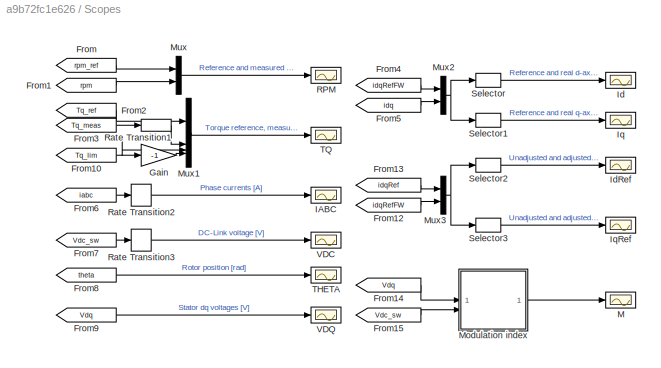
BLOCK [SubSystem] Scopes
BLOCK [From] Scopes/From
  GotoTag = rpm_ref
  TagVisibility = global
BLOCK [From] Scopes/From1
  GotoTag = rpm
  TagVisibility = global
BLOCK [From] Scopes/From10
  GotoTag = Tq_lim
  TagVisibility = global
BLOCK [From] Scopes/From12
  GotoTag = idqRefFW
  TagVisibility = global
BLOCK [From] Scopes/From13
  GotoTag = idqRef
  TagVisibility = global
BLOCK [From] Scopes/From14
  GotoTag = Vdq
  TagVisibility = global
BLOCK [From] Scopes/From15
  GotoTag = Vdc_sw
  TagVisibility = global
BLOCK [From] Scopes/From2
  GotoTag = Tq_ref
  TagVisibility = global
BLOCK [From] Scopes/From3
  GotoTag = Tq_meas
  TagVisibility = global
BLOCK [From] Scopes/From4
  GotoTag = idqRefFW
  TagVisibility = global
BLOCK [From] Scopes/From5
  GotoTag = idq
  TagVisibility = global
BLOCK [From] Scopes/From6
  GotoTag = iabc
  TagVisibility = global
BLOCK [From] Scopes/From7
  GotoTag = Vdc_sw
  TagVisibility = global
BLOCK [From] Scopes/From8
  GotoTag = theta
  TagVisibility = global
BLOCK [From] Scopes/From9
  GotoTag = Vdq
  TagVisibility = global
BLOCK [Gain] Scopes/Gain
  Gain = -1
BLOCK [Scope] Scopes/IABC
  Floating = off
  NumInputPorts = 1
  ScopeSpecificationString = Simulink.scopes.TimeScopeBlockCfg('CurrentConfiguration', extmgr.ConfigurationSet(extmgr.Configuration('Core','General UI',true),extmgr.Configuration('Core','Source UI',true),extmgr.Configuration('Sources','WiredSimulink',true,'DataLoggingVariableName','ScopeData1','DataLoggingSaveFormat','Array','DataLoggingDecimation','1','DataLoggingDecimateData',true),extmgr.Configuration('Visuals','Time Domai...<+1655ch>
BLOCK [Scope] Scopes/Id
  Floating = off
  NumInputPorts = 1
  ScopeSpecificationString = Simulink.scopes.TimeScopeBlockCfg('CurrentConfiguration', extmgr.ConfigurationSet(extmgr.Configuration('Core','General UI',true),extmgr.Configuration('Core','Source UI',true),extmgr.Configuration('Sources','WiredSimulink',true,'DataLoggingVariableName','ScopeData2','DataLoggingSaveFormat','Array','DataLoggingDecimation','1','DataLoggingDecimateData',true),extmgr.Configuration('Visuals','Time Domai...<+1661ch>
BLOCK [Scope] Scopes/IdRef
  Floating = off
  NumInputPorts = 1
  ScopeSpecificationString = Simulink.scopes.TimeScopeBlockCfg('CurrentConfiguration', extmgr.ConfigurationSet(extmgr.Configuration('Core','General UI',true),extmgr.Configuration('Core','Source UI',true),extmgr.Configuration('Sources','WiredSimulink',true,'DataLoggingVariableName','ScopeData1','DataLoggingSaveFormat','Array','DataLoggingDecimation','1','DataLoggingDecimateData',true),extmgr.Configuration('Visuals','Time Domai...<+1639ch>
BLOCK [Scope] Scopes/Iq
  Floating = off
  NumInputPorts = 1
  ScopeSpecificationString = Simulink.scopes.TimeScopeBlockCfg('CurrentConfiguration', extmgr.ConfigurationSet(extmgr.Configuration('Core','General UI',true),extmgr.Configuration('Core','Source UI',true),extmgr.Configuration('Sources','WiredSimulink',true,'DataLoggingVariableName','ScopeData3','DataLoggingSaveFormat','Array','DataLoggingDecimation','1','DataLoggingDecimateData',true),extmgr.Configuration('Visuals','Time Domai...<+1654ch>
BLOCK [Scope] Scopes/IqRef
  Floating = off
  NumInputPorts = 1
  ScopeSpecificationString = Simulink.scopes.TimeScopeBlockCfg('CurrentConfiguration', extmgr.ConfigurationSet(extmgr.Configuration('Core','General UI',true),extmgr.Configuration('Core','Source UI',true),extmgr.Configuration('Sources','WiredSimulink',true,'DataLoggingVariableName','ScopeData2','DataLoggingSaveFormat','Array','DataLoggingDecimation','1','DataLoggingDecimateData',true),extmgr.Configuration('Visuals','Time Domai...<+1645ch>
BLOCK [Scope] Scopes/M
  Floating = off
  NumInputPorts = 1
  ScopeSpecificationString = Simulink.scopes.TimeScopeBlockCfg('CurrentConfiguration', extmgr.ConfigurationSet(extmgr.Configuration('Core','General UI',true),extmgr.Configuration('Core','Source UI',true),extmgr.Configuration('Sources','WiredSimulink',true,'DataLoggingVariableName','ScopeData1','DataLoggingSaveFormat','Array','DataLoggingDecimation','1','DataLoggingDecimateData',true),extmgr.Configuration('Visuals','Time Domai...<+1528ch>
BLOCK [SubSystem] Scopes/Modulation index
BLOCK [Gain] Scopes/Modulation index/Gain1
  Gain = 1/sqrt(3)
BLOCK [Outport] Scopes/Modulation index/M
  VectorParamsAs1DForOutWhenUnconnected = off
BLOCK [Math] Scopes/Modulation index/Math Function
  Operator = square
  SignedPower = on
BLOCK [SubSystem] Scopes/Modulation index/Prevent division by 0
BLOCK [Constant] Scopes/Modulation index/Prevent division by 0/Constant1
  SampleTime = electricDrive.PmsmControlParams.Tsi
  Value = 0.1
BLOCK [Inport] Scopes/Modulation index/Prevent division by 0/IN
BLOCK [Outport] Scopes/Modulation index/Prevent division by 0/OUT
  VectorParamsAs1DForOutWhenUnconnected = off
BLOCK [Switch] Scopes/Modulation index/Prevent division by 0/Switch
  Criteria = u2 > Threshold
  InputSameDT = off
  SaturateOnIntegerOverflow = off
  Threshold = 0.1
BLOCK [Product] Scopes/Modulation index/Product
  Inputs = */
BLOCK [RateTransition] Scopes/Modulation index/Rate Transition4
  OutPortSampleTime = electricDrive.PmsmControlParams.Tsi
BLOCK [RateTransition] Scopes/Modulation index/Rate Transition5
  OutPortSampleTime = electricDrive.PmsmControlParams.Tsi
BLOCK [Sqrt] Scopes/Modulation index/Sqrt
BLOCK [Sum] Scopes/Modulation index/Sum of Elements
  IconShape = rectangular
  Inputs = +
BLOCK [Inport] Scopes/Modulation index/Vdc
  Port = 2
BLOCK [Inport] Scopes/Modulation index/vdq
BLOCK [Mux] Scopes/Mux
  DisplayOption = bar
  Inputs = 2
BLOCK [Mux] Scopes/Mux1
  DisplayOption = bar
BLOCK [Mux] Scopes/Mux2
  DisplayOption = bar
  Inputs = 2
BLOCK [Mux] Scopes/Mux3
  DisplayOption = bar
  Inputs = 2
BLOCK [Scope] Scopes/RPM
  Floating = off
  NumInputPorts = 1
  ScopeSpecificationString = Simulink.scopes.TimeScopeBlockCfg('CurrentConfiguration', extmgr.ConfigurationSet(extmgr.Configuration('Core','General UI',true),extmgr.Configuration('Core','Source UI',true),extmgr.Configuration('Sources','WiredSimulink',true,'DataLoggingVariableName','ScopeData5','DataLoggingSaveFormat','Array','DataLoggingDecimation','1','DataLoggingDecimateData',true),extmgr.Configuration('Visuals','Time Domai...<+1637ch>
BLOCK [RateTransition] Scopes/Rate Transition1
BLOCK [RateTransition] Scopes/Rate Transition2
  OutPortSampleTime = 1e-4
BLOCK [RateTransition] Scopes/Rate Transition3
  OutPortSampleTime = 1e-4
BLOCK [Selector] Scopes/Selector
  IndexOptions = Index vector (dialog)
  Indices = [1 3]
  InputPortWidth = 4
  OutputSizes = 1
BLOCK [Selector] Scopes/Selector1
  IndexOptions = Index vector (dialog)
  Indices = [2 4]
  InputPortWidth = 4
  OutputSizes = 1
BLOCK [Selector] Scopes/Selector2
  IndexOptions = Index vector (dialog)
  Indices = [1 3]
  InputPortWidth = 4
  OutputSizes = 1
BLOCK [Selector] Scopes/Selector3
  IndexOptions = Index vector (dialog)
  Indices = [2 4]
  InputPortWidth = 4
  OutputSizes = 1
BLOCK [Scope] Scopes/THETA
  Floating = off
  NumInputPorts = 1
  ScopeSpecificationString = Simulink.scopes.TimeScopeBlockCfg('CurrentConfiguration', extmgr.ConfigurationSet(extmgr.Configuration('Core','General UI',true),extmgr.Configuration('Core','Source UI',true),extmgr.Configuration('Sources','WiredSimulink',true,'DataLoggingVariableName','ScopeData6','DataLoggingSaveFormat','Array','DataLoggingDecimation','1','DataLoggingDecimateData',true),extmgr.Configuration('Visuals','Time Domai...<+1522ch>
BLOCK [Scope] Scopes/TQ
  Floating = off
  NumInputPorts = 1
  ScopeSpecificationString = Simulink.scopes.TimeScopeBlockCfg('CurrentConfiguration', extmgr.ConfigurationSet(extmgr.Configuration('Core','General UI',true),extmgr.Configuration('Core','Source UI',true),extmgr.Configuration('Sources','WiredSimulink',true,'DataLoggingVariableName','ScopeData7','DataLoggingSaveFormat','Array','DataLoggingDecimation','1','DataLoggingDecimateData',true),extmgr.Configuration('Visuals','Time Domai...<+1733ch>
BLOCK [Scope] Scopes/VDC
  Floating = off
  NumInputPorts = 1
  ScopeSpecificationString = Simulink.scopes.TimeScopeBlockCfg('CurrentConfiguration', extmgr.ConfigurationSet(extmgr.Configuration('Core','General UI',true),extmgr.Configuration('Core','Source UI',true),extmgr.Configuration('Sources','WiredSimulink',true,'DataLoggingVariableName','ScopeData8','DataLoggingSaveFormat','Array','DataLoggingDecimation','1','DataLoggingDecimateData',true),extmgr.Configuration('Visuals','Time Domai...<+1533ch>
BLOCK [Scope] Scopes/VDQ
  Floating = off
  NumInputPorts = 1
  ScopeSpecificationString = Simulink.scopes.TimeScopeBlockCfg('CurrentConfiguration', extmgr.ConfigurationSet(extmgr.Configuration('Core','General UI',true),extmgr.Configuration('Core','Source UI',true),extmgr.Configuration('Sources','WiredSimulink',true,'DataLoggingSaveFormat','Array','DataLoggingDecimation','1','DataLoggingDecimateData',true),extmgr.Configuration('Visuals','Time Domain',true,'SerializedDisplays',{struct('M...<+1526ch>
BLOCK [SubSystem] Sensing iabc
BLOCK [PMIOPort] Sensing iabc/1
  Side = Left
BLOCK [PMIOPort] Sensing iabc/2
  Port = 2
  Side = Right
BLOCK [Reference] Sensing iabc/Current Sensor  REF=ee_lib/Sensors &
Transducers/Current Sensor
(Three-Phase)
  SourceBlock = ee_lib/Sensors &\nTransducers/Current Sensor\n(Three-Phase)
  SourceType = Current Sensor\n(Three-Phase)
BLOCK [Goto] Sensing iabc/Goto
  GotoTag = iabc
  TagVisibility = global
BLOCK [Reference] Sensing iabc/PS-Simulink Converter  REF=nesl_utility/PS-Simulink
Converter
  SourceBlock = nesl_utility/PS-Simulink\nConverter
  SourceType = PS-Simulink\nConverter
BLOCK [SubSystem] Sensing trq
BLOCK [PMIOPort] Sensing trq/C
  Port = 2
  Side = Right
BLOCK [Goto] Sensing trq/Goto4
  GotoTag = Tq_meas
  TagVisibility = global
BLOCK [Reference] Sensing trq/PS-Simulink Converter3  REF=nesl_utility/PS-Simulink
Converter
  SourceBlock = nesl_utility/PS-Simulink\nConverter
  SourceType = PS-Simulink\nConverter
BLOCK [PMIOPort] Sensing trq/R
  Side = Left
BLOCK [Reference] Sensing trq/Torque Sensor  REF=fl_lib/Mechanical/Mechanical Sensors/Ideal Torque Sensor
  SourceBlock = fl_lib/Mechanical/Mechanical Sensors/Ideal Torque Sensor
  SourceType = Ideal Torque Sensor
BLOCK [SubSystem] Sensing w a
  NameLocation = top
BLOCK [Goto] Sensing w a/Goto2
  GotoTag = w
  TagVisibility = global
BLOCK [Goto] Sensing w a/Goto3
  GotoTag = a
  TagVisibility = global
BLOCK [Reference] Sensing w a/MRRef  REF=fl_lib/Mechanical/Rotational Elements/Mechanical
Rotational Reference
  NameLocation = left
  SourceBlock = fl_lib/Mechanical/Rotational Elements/Mechanical\nRotational Reference
  SourceType = Mechanical\nRotational Reference
BLOCK [Reference] Sensing w a/Motion Sensor  REF=fl_lib/Mechanical/Mechanical Sensors/Ideal Rotational
Motion Sensor
  NameLocation = right
  SourceBlock = fl_lib/Mechanical/Mechanical Sensors/Ideal Rotational\nMotion Sensor
  SourceType = Ideal Rotational\nMotion Sensor
BLOCK [Reference] Sensing w a/PS-Simulink Converter1  REF=nesl_utility/PS-Simulink
Converter
  SourceBlock = nesl_utility/PS-Simulink\nConverter
  SourceType = PS-Simulink\nConverter
BLOCK [Reference] Sensing w a/PS-Simulink Converter2  REF=nesl_utility/PS-Simulink
Converter
  SourceBlock = nesl_utility/PS-Simulink\nConverter
  SourceType = PS-Simulink\nConverter
BLOCK [PMIOPort] Sensing w a/R
  NameLocation = right
  Side = Left
BLOCK [Reference] Solver Configuration  REF=nesl_utility/Solver
Configuration
  NameLocation = top
  SourceBlock = nesl_utility/Solver\nConfiguration
  SourceType = Solver\nConfiguration
BLOCK [SubSystem] Subsystem
  NameLocation = left
  PortSchema = {"entries":[{"content":{"sides":[{"content":{"connectorIds":[]},"type":"ConnectorPlacement.EquallySpacedRectSide","uuid":"5b33bb33-1028-4467-9d0b-860d7c65cb16"},{"content":{"connectorIds":["RConn1","RConn2","RConn3"],"side":"RIGHT"},"type":"ConnectorPlacement.EquallySpacedRectSide","uuid":"d30bcb89-569c-4584-a5e8-bf96143649ac"},{"content":{"connectorIds":["In1"],"side":"TOP"},"type":"ConnectorPlac...<+260ch>
BLOCK [Inport] Subsystem/ 
BLOCK [BusSelector] Subsystem/Bus Selector
  NameLocation = left
  OutputSignals = Brake pedal,Incline,Wind speed
BLOCK [Reference] Subsystem/PS Gain  REF=fl_lib/Physical Signals/Functions/PS Gain
  NameLocation = left
  SourceBlock = fl_lib/Physical Signals/Functions/PS Gain
  SourceType = PS Gain
BLOCK [Reference] Subsystem/Simulink-PS Converter1  REF=nesl_utility/Simulink-PS
Converter
  NameLocation = left
  SourceBlock = nesl_utility/Simulink-PS\nConverter
  SourceType = Simulink-PS\nConverter
BLOCK [Reference] Subsystem/Simulink-PS Converter2  REF=nesl_utility/Simulink-PS
Converter
  NameLocation = left
  SourceBlock = nesl_utility/Simulink-PS\nConverter
  SourceType = Simulink-PS\nConverter
BLOCK [Reference] Subsystem/Simulink-PS Converter3  REF=nesl_utility/Simulink-PS
Converter
  NameLocation = left
  SourceBlock = nesl_utility/Simulink-PS\nConverter
  SourceType = Simulink-PS\nConverter
BLOCK [PMIOPort] Subsystem/brk
  Side = Right
BLOCK [PMIOPort] Subsystem/gd
  NameLocation = right
  Port = 2
  Side = Right
BLOCK [PMIOPort] Subsystem/wd
  Port = 3
  Side = Right
BLOCK [SubSystem] Test Invironment&FOC
  NameLocation = top
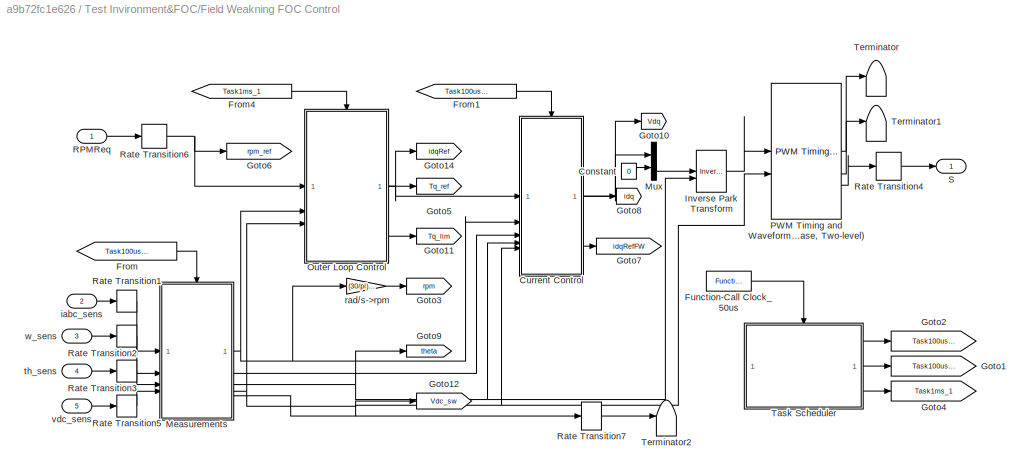
BLOCK [SubSystem] Test Invironment&FOC/Field Weakning FOC Control
  NameLocation = top
BLOCK [Constant] Test Invironment&FOC/Field Weakning FOC Control/Constant
  SampleTime = -1
  Value = 0
BLOCK [SubSystem] Test Invironment&FOC/Field Weakning FOC Control/Current Control
BLOCK [Constant] Test Invironment&FOC/Field Weakning FOC Control/Current Control/Constant
  SampleTime = -1
  Value = 0
BLOCK [Gain] Test Invironment&FOC/Field Weakning FOC Control/Current Control/Gain
  Gain = 1/sqrt(3)
BLOCK [Reference] Test Invironment&FOC/Field Weakning FOC Control/Current Control/PMSM Current Controller with Pre-Control  REF=eePmsmCurrentController/PMSM Current Controller
with Pre-Control
  SourceBlock = eePmsmCurrentController/PMSM Current Controller\nwith Pre-Control
  SourceType = PMSM Current Controller with Pre-Control
BLOCK [Reference] Test Invironment&FOC/Field Weakning FOC Control/Current Control/PMSM Field-Weakening Controller  REF=eePmsmFwController/PMSM Field-Weakening
Controller
  SourceBlock = eePmsmFwController/PMSM Field-Weakening\nController
  SourceType = PMSM Field-Weakening Controller
BLOCK [Reference] Test Invironment&FOC/Field Weakning FOC Control/Current Control/Park Transform  REF=eeTransforms/Park Transform
  SourceBlock = eeTransforms/Park Transform
  SourceType = Park Transform
BLOCK [Selector] Test Invironment&FOC/Field Weakning FOC Control/Current Control/Selector
  IndexOptions = Index vector (dialog)
  Indices = [1 2]
  InputPortWidth = 3
  OutputSizes = 1
BLOCK [TriggerPort] Test Invironment&FOC/Field Weakning FOC Control/Current Control/Task100us
  PortDimensions = 1
  StatesWhenEnabling = held
  TriggerType = function-call
  VariantControl = Variant
BLOCK [Inport] Test Invironment&FOC/Field Weakning FOC Control/Current Control/Vdc
  Port = 5
BLOCK [Inport] Test Invironment&FOC/Field Weakning FOC Control/Current Control/iabc
  Port = 3
BLOCK [Outport] Test Invironment&FOC/Field Weakning FOC Control/Current Control/idq
  Port = 2
  VectorParamsAs1DForOutWhenUnconnected = off
BLOCK [Outport] Test Invironment&FOC/Field Weakning FOC Control/Current Control/idqRefFW
  Port = 3
  VectorParamsAs1DForOutWhenUnconnected = off
BLOCK [Inport] Test Invironment&FOC/Field Weakning FOC Control/Current Control/idq_ref
BLOCK [Inport] Test Invironment&FOC/Field Weakning FOC Control/Current Control/theta
  Port = 4
BLOCK [Outport] Test Invironment&FOC/Field Weakning FOC Control/Current Control/vdq
  VectorParamsAs1DForOutWhenUnconnected = off
BLOCK [Inport] Test Invironment&FOC/Field Weakning FOC Control/Current Control/we
  Port = 2
BLOCK [From] Test Invironment&FOC/Field Weakning FOC Control/From
  GotoTag = Task100us_1
BLOCK [From] Test Invironment&FOC/Field Weakning FOC Control/From1
  GotoTag = Task100us_2
BLOCK [From] Test Invironment&FOC/Field Weakning FOC Control/From4
  GotoTag = Task1ms_1
BLOCK [Reference] Test Invironment&FOC/Field Weakning FOC Control/Function-Call Clock_50us  REF=simulink/Ports &
Subsystems/Function-Call
Generator
  SourceBlock = simulink/Ports &\nSubsystems/Function-Call\nGenerator
  SourceType = Function-Call Generator
BLOCK [Goto] Test Invironment&FOC/Field Weakning FOC Control/Goto1
  GotoTag = Task100us_2
BLOCK [Goto] Test Invironment&FOC/Field Weakning FOC Control/Goto10
  GotoTag = Vdq
  TagVisibility = global
BLOCK [Goto] Test Invironment&FOC/Field Weakning FOC Control/Goto11
  GotoTag = Tq_lim
  TagVisibility = global
BLOCK [Goto] Test Invironment&FOC/Field Weakning FOC Control/Goto12
  GotoTag = Vdc_sw
  TagVisibility = global
BLOCK [Goto] Test Invironment&FOC/Field Weakning FOC Control/Goto14
  GotoTag = idqRef
  TagVisibility = global
BLOCK [Goto] Test Invironment&FOC/Field Weakning FOC Control/Goto2
  GotoTag = Task100us_1
BLOCK [Goto] Test Invironment&FOC/Field Weakning FOC Control/Goto3
  GotoTag = rpm
  TagVisibility = global
BLOCK [Goto] Test Invironment&FOC/Field Weakning FOC Control/Goto4
  GotoTag = Task1ms_1
BLOCK [Goto] Test Invironment&FOC/Field Weakning FOC Control/Goto5
  GotoTag = Tq_ref
  TagVisibility = global
BLOCK [Goto] Test Invironment&FOC/Field Weakning FOC Control/Goto6
  GotoTag = rpm_ref
  TagVisibility = global
BLOCK [Goto] Test Invironment&FOC/Field Weakning FOC Control/Goto7
  GotoTag = idqRefFW
  TagVisibility = global
BLOCK [Goto] Test Invironment&FOC/Field Weakning FOC Control/Goto8
  GotoTag = idq
  TagVisibility = global
BLOCK [Goto] Test Invironment&FOC/Field Weakning FOC Control/Goto9
  GotoTag = theta
  TagVisibility = global
BLOCK [Reference] Test Invironment&FOC/Field Weakning FOC Control/Inverse Park Transform  REF=eeTransforms/Inverse
Park Transform
  SourceBlock = eeTransforms/Inverse\nPark Transform
  SourceType = Inverse Park Transform
BLOCK [SubSystem] Test Invironment&FOC/Field Weakning FOC Control/Measurements
BLOCK [Constant] Test Invironment&FOC/Field Weakning FOC Control/Measurements/2*pi
  SampleTime = -1
  Value = 2*pi
BLOCK [Math] Test Invironment&FOC/Field Weakning FOC Control/Measurements/Math Function
  Operator = mod
  SignedPower = on
BLOCK [Outport] Test Invironment&FOC/Field Weakning FOC Control/Measurements/PwmEnable
  Port = 5
  VectorParamsAs1DForOutWhenUnconnected = off
BLOCK [Relay] Test Invironment&FOC/Field Weakning FOC Control/Measurements/Relay
  OffSwitchValue = 100
  OnSwitchValue = 200
BLOCK [TriggerPort] Test Invironment&FOC/Field Weakning FOC Control/Measurements/Task100us
  PortDimensions = 1
  StatesWhenEnabling = held
  TriggerType = function-call
  VariantControl = Variant
BLOCK [Outport] Test Invironment&FOC/Field Weakning FOC Control/Measurements/Vdc
  Port = 4
  VectorParamsAs1DForOutWhenUnconnected = off
BLOCK [SubSystem] Test Invironment&FOC/Field Weakning FOC Control/Measurements/Vdc Filter
BLOCK [DiscreteTransferFcn] Test Invironment&FOC/Field Weakning FOC Control/Measurements/Vdc Filter/Discrete Transfer Fcn
  Denominator = den
  InputPortMap = u0
  Numerator = num
BLOCK [Inport] Test Invironment&FOC/Field Weakning FOC Control/Measurements/Vdc Filter/In
BLOCK [Outport] Test Invironment&FOC/Field Weakning FOC Control/Measurements/Vdc Filter/Out
  VectorParamsAs1DForOutWhenUnconnected = off
BLOCK [Inport] Test Invironment&FOC/Field Weakning FOC Control/Measurements/Vdc_sens
  Port = 4
BLOCK [Outport] Test Invironment&FOC/Field Weakning FOC Control/Measurements/iabc
  Port = 2
  VectorParamsAs1DForOutWhenUnconnected = off
BLOCK [Inport] Test Invironment&FOC/Field Weakning FOC Control/Measurements/iabc_sens
BLOCK [Gain] Test Invironment&FOC/Field Weakning FOC Control/Measurements/pole pairs
  Gain = electricDrive.PmsmParams.NumPolePairs
BLOCK [Gain] Test Invironment&FOC/Field Weakning FOC Control/Measurements/pole pairs 
  Gain = electricDrive.PmsmParams.NumPolePairs
BLOCK [Inport] Test Invironment&FOC/Field Weakning FOC Control/Measurements/th_sens
  Port = 3
BLOCK [Outport] Test Invironment&FOC/Field Weakning FOC Control/Measurements/theta
  Port = 3
  VectorParamsAs1DForOutWhenUnconnected = off
BLOCK [Inport] Test Invironment&FOC/Field Weakning FOC Control/Measurements/w_sens
  Port = 2
BLOCK [Outport] Test Invironment&FOC/Field Weakning FOC Control/Measurements/we
  VectorParamsAs1DForOutWhenUnconnected = off
BLOCK [Mux] Test Invironment&FOC/Field Weakning FOC Control/Mux
  DisplayOption = bar
  Inputs = 2
BLOCK [SubSystem] Test Invironment&FOC/Field Weakning FOC Control/Outer Loop Control
BLOCK [Constant] Test Invironment&FOC/Field Weakning FOC Control/Outer Loop Control/Constant
  SampleTime = -1
  Value = 0
BLOCK [Reference] Test Invironment&FOC/Field Weakning FOC Control/Outer Loop Control/PMSM Current Reference Generator  REF=eePmsmCurrentReferenceGen/PMSM Current Reference
Generator
  SourceBlock = eePmsmCurrentReferenceGen/PMSM Current Reference\nGenerator
  SourceType = PMSM Current Reference Generator
BLOCK [Inport] Test Invironment&FOC/Field Weakning FOC Control/Outer Loop Control/RPMReq
BLOCK [TriggerPort] Test Invironment&FOC/Field Weakning FOC Control/Outer Loop Control/Task1ms
  PortDimensions = 1
  StatesWhenEnabling = held
  TriggerType = function-call
  VariantControl = Variant
BLOCK [Outport] Test Invironment&FOC/Field Weakning FOC Control/Outer Loop Control/Tq_lim
  Port = 3
  VectorParamsAs1DForOutWhenUnconnected = off
BLOCK [Outport] Test Invironment&FOC/Field Weakning FOC Control/Outer Loop Control/Tq_ref
  Port = 2
  VectorParamsAs1DForOutWhenUnconnected = off
BLOCK [Inport] Test Invironment&FOC/Field Weakning FOC Control/Outer Loop Control/Vdc
  Port = 3
BLOCK [Reference] Test Invironment&FOC/Field Weakning FOC Control/Outer Loop Control/Velocity Controller  REF=eeVelocityController/Velocity Controller
  SourceBlock = eeVelocityController/Velocity Controller
  SourceType = Velocity Controller
BLOCK [Gain] Test Invironment&FOC/Field Weakning FOC Control/Outer Loop Control/elec->mech
  Gain = 1/electricDrive.PmsmParams.NumPolePairs
BLOCK [Outport] Test Invironment&FOC/Field Weakning FOC Control/Outer Loop Control/idqRef
  VectorParamsAs1DForOutWhenUnconnected = off
BLOCK [Gain] Test Invironment&FOC/Field Weakning FOC Control/Outer Loop Control/rpm->rad//s
  Gain = (pi/30)
BLOCK [Inport] Test Invironment&FOC/Field Weakning FOC Control/Outer Loop Control/we
  Port = 2
BLOCK [Reference] Test Invironment&FOC/Field Weakning FOC Control/PWM Timing and Waveform Generator (Three-phase, Two-level)  REF=eePwmGeneratorTwoLevel/PWM Timing and Waveform
Generator
(Three-phase, Two-level)
  SourceBlock = eePwmGeneratorTwoLevel/PWM Timing and Waveform\nGenerator\n(Three-phase, Two-level)
  SourceType = PWM Timing and Waveform Generator (Three-phase, Two-level)
BLOCK [Inport] Test Invironment&FOC/Field Weakning FOC Control/RPMReq
BLOCK [RateTransition] Test Invironment&FOC/Field Weakning FOC Control/Rate Transition1
BLOCK [RateTransition] Test Invironment&FOC/Field Weakning FOC Control/Rate Transition2
BLOCK [RateTransition] Test Invironment&FOC/Field Weakning FOC Control/Rate Transition3
BLOCK [RateTransition] Test Invironment&FOC/Field Weakning FOC Control/Rate Transition4
BLOCK [RateTransition] Test Invironment&FOC/Field Weakning FOC Control/Rate Transition5
BLOCK [RateTransition] Test Invironment&FOC/Field Weakning FOC Control/Rate Transition6
BLOCK [RateTransition] Test Invironment&FOC/Field Weakning FOC Control/Rate Transition7
BLOCK [Outport] Test Invironment&FOC/Field Weakning FOC Control/S
  VectorParamsAs1DForOutWhenUnconnected = off
BLOCK [SubSystem] Test Invironment&FOC/Field Weakning FOC Control/Task Scheduler
  ErrorFcn = Stateflow.Translate.translate
  PermitHierarchicalResolution = ExplicitOnly
  SFBlockType = Chart
  TreatAsAtomicUnit = on
BLOCK [Demux] Test Invironment&FOC/Field Weakning FOC Control/Task Scheduler/ Demux 
  Outputs = 3
BLOCK [S-Function] Test Invironment&FOC/Field Weakning FOC Control/Task Scheduler/ SFunction 
  EnableBusSupport = on
  FunctionName = sf_sfun
  PortCounts = [1 1]
  SFcnIsStateOwnerBlock = off
  SFunctionDeploymentMode = off
  Tag = Stateflow S-Function 1
BLOCK [TriggerPort] Test Invironment&FOC/Field Weakning FOC Control/Task Scheduler/CLK_50us
  ShowOutputPort = on
  TriggerType = function-call
  VariantControl = Variant
BLOCK [Outport] Test Invironment&FOC/Field Weakning FOC Control/Task Scheduler/Task_100us_1()
  VectorParamsAs1DForOutWhenUnconnected = off
BLOCK [Outport] Test Invironment&FOC/Field Weakning FOC Control/Task Scheduler/Task_100us_2()
  Port = 2
  VectorParamsAs1DForOutWhenUnconnected = off
BLOCK [Outport] Test Invironment&FOC/Field Weakning FOC Control/Task Scheduler/Task_1ms_1()
  Port = 3
  VectorParamsAs1DForOutWhenUnconnected = off
BLOCK [Terminator] Test Invironment&FOC/Field Weakning FOC Control/Terminator
BLOCK [Terminator] Test Invironment&FOC/Field Weakning FOC Control/Terminator1
BLOCK [Terminator] Test Invironment&FOC/Field Weakning FOC Control/Terminator2
BLOCK [Inport] Test Invironment&FOC/Field Weakning FOC Control/iabc_sens
  Port = 2
BLOCK [Gain] Test Invironment&FOC/Field Weakning FOC Control/rad//s->rpm
  Gain = (30/pi)/electricDrive.PmsmParams.NumPolePairs
BLOCK [Inport] Test Invironment&FOC/Field Weakning FOC Control/th_sens
  Port = 4
BLOCK [Inport] Test Invironment&FOC/Field Weakning FOC Control/vdc_sens
  Port = 5
BLOCK [Inport] Test Invironment&FOC/Field Weakning FOC Control/w_sens
  Port = 3
BLOCK [From] Test Invironment&FOC/From5
  GotoTag = a
  TagVisibility = global
BLOCK [From] Test Invironment&FOC/From6
  GotoTag = w
  TagVisibility = global
BLOCK [From] Test Invironment&FOC/From7
  GotoTag = iabc
  TagVisibility = global
BLOCK [From] Test Invironment&FOC/From8
  GotoTag = Vdc
  TagVisibility = global
BLOCK [Goto] Test Invironment&FOC/Goto
  GotoTag = TD
  TagVisibility = global
BLOCK [Inport] Test Invironment&FOC/In1
BLOCK [SubSystem] Test Invironment&FOC/Motor Speed Reference
BLOCK [Constant] Test Invironment&FOC/Motor Speed Reference/Constant1
  Value = electricDrive.VehicleParams.wheel_radius
BLOCK [Product] Test Invironment&FOC/Motor Speed Reference/Divide
  Inputs = */
BLOCK [Gain] Test Invironment&FOC/Motor Speed Reference/Gain
  Gain = 2*pi
BLOCK [Constant] Test Invironment&FOC/Motor Speed Reference/Gear_ratio
  Value = electricDrive.VehicleParams.Gear_ratio
BLOCK [Outport] Test Invironment&FOC/Motor Speed Reference/MotorSpdRef
  NameLocation = right
  Unit = rpm
  VectorParamsAs1DForOutWhenUnconnected = off
BLOCK [Product] Test Invironment&FOC/Motor Speed Reference/Product
BLOCK [SignalSpecification] Test Invironment&FOC/Motor Speed Reference/Signal Specification
  Unit = m/min
BLOCK [UnitConversion] Test Invironment&FOC/Motor Speed Reference/Unit Conversion
BLOCK [Inport] Test Invironment&FOC/Motor Speed Reference/VehSpd
  NameLocation = left
  Unit = km/hr
BLOCK [RateTransition] Test Invironment&FOC/RT
  NameLocation = right
  OutPortSampleTime = 5e-05
BLOCK [Outport] Test Invironment&FOC/S
BLOCK [SubSystem] Test Invironment&FOC/Test Environment
  NameLocation = top
BLOCK [Constant] Test Invironment&FOC/Test Environment/Break
  Value = 0
BLOCK [Constant] Test Invironment&FOC/Test Environment/Break1
BLOCK [SubSystem] Test Invironment&FOC/Test Environment/Bus
  NameLocation = top
BLOCK [Inport] Test Invironment&FOC/Test Environment/Bus/Br
  Port = 3
BLOCK [BusCreator] Test Invironment&FOC/Test Environment/Bus/Bus Creator
  DisplayOption = bar
  InheritFromInputs = on
  Inputs = 3
BLOCK [Inport] Test Invironment&FOC/Test Environment/Bus/In
BLOCK [Inport] Test Invironment&FOC/Test Environment/Bus/Wi
  Port = 2
BLOCK [Outport] Test Invironment&FOC/Test Environment/Bus/b
  VectorParamsAs1DForOutWhenUnconnected = off
BLOCK [Inport] Test Invironment&FOC/Test Environment/In1
BLOCK [Constant] Test Invironment&FOC/Test Environment/Road Inclination
BLOCK [Switch] Test Invironment&FOC/Test Environment/Switch
  Criteria = u2 > Threshold
  InputSameDT = off
  SaturateOnIntegerOverflow = off
  Threshold = -0.4557
BLOCK [Constant] Test Invironment&FOC/Test Environment/Wind Speed
  Value = 0
BLOCK [Outport] Test Invironment&FOC/Test Environment/b
BLOCK [Reference] Test Invironment&FOC/Transfer Fcn First Order  REF=simulink/Discrete/Transfer Fcn
First Order
  SourceBlock = simulink/Discrete/Transfer Fcn\nFirst Order
  SourceType = First Order Transfer Fcn
BLOCK [UnitDelay] Test Invironment&FOC/Unit Delay
  HasFrameUpgradeWarning = on
  SampleTime = -1
BLOCK [Scope] vehicle speed
  Floating = off
  NumInputPorts = 1
  ScopeSpecificationString = Simulink.scopes.TimeScopeBlockCfg('CurrentConfiguration', extmgr.ConfigurationSet(extmgr.Configuration('Core','General UI',true),extmgr.Configuration('Core','Source UI',true),extmgr.Configuration('Sources','WiredSimulink',true,'DataLoggingVariableName','ScopeData2'),extmgr.Configuration('Visuals','Time Domain',true,'SerializedDisplays',{struct('MinYLimReal','-1.28909','MaxYLimReal','11.51595','YLa...<+1490ch>
ANNOTATION (root): 1. Define thermal parameters ( Model Parameters ) 2. Explore simulation results using sscexplore 3. Learn more about the example
ANNOTATION (root): Motor Drive Detail Thermal Test Bench
ANNOTATION  Motor Thermal: Temperature
ANNOTATION  Motor Thermal: FEA-Parameterized PMSM
LINE  Motor Thermal/Air_HTC_calculation/Rotor side  HTC/Abs:1 ->  Motor Thermal/Air_HTC_calculation/Rotor side  HTC/Sqrt:1
LINE  Motor Thermal/Air_HTC_calculation/Rotor side  HTC/Gain4:1 ->  Motor Thermal/Air_HTC_calculation/Rotor side  HTC/Output:1
LINE  Motor Thermal/Air_HTC_calculation/Rotor side  HTC/PS-Simulink Converter5:1 ->  Motor Thermal/Air_HTC_calculation/Rotor side  HTC/Unit Delay3:1
LINE  Motor Thermal/Air_HTC_calculation/Rotor side  HTC/Sqrt:1 ->  Motor Thermal/Air_HTC_calculation/Rotor side  HTC/Gain4:1
LINE  Motor Thermal/Air_HTC_calculation/Rotor side  HTC/Unit Delay3:1 ->  Motor Thermal/Air_HTC_calculation/Rotor side  HTC/Abs:1
LINE  Motor Thermal/Air_HTC_calculation/Rotor side  HTC:1 ->  Motor Thermal/Air_HTC_calculation/HTC2:1
LINE  Motor Thermal/Air_HTC_calculation/Rotor_Taylor_Couette  HTC/Abs:1 ->  Motor Thermal/Air_HTC_calculation/Rotor_Taylor_Couette  HTC/Power:1
LINE  Motor Thermal/Air_HTC_calculation/Rotor_Taylor_Couette  HTC/Constant1:1 ->  Motor Thermal/Air_HTC_calculation/Rotor_Taylor_Couette  HTC/Divide:2
LINE  Motor Thermal/Air_HTC_calculation/Rotor_Taylor_Couette  HTC/Constant2:1 ->  Motor Thermal/Air_HTC_calculation/Rotor_Taylor_Couette  HTC/Power:2
LINE  Motor Thermal/Air_HTC_calculation/Rotor_Taylor_Couette  HTC/Constant:1 ->  Motor Thermal/Air_HTC_calculation/Rotor_Taylor_Couette  HTC/Square:1
LINE  Motor Thermal/Air_HTC_calculation/Rotor_Taylor_Couette  HTC/Divide:1 ->  Motor Thermal/Air_HTC_calculation/Rotor_Taylor_Couette  HTC/Output:1
LINE  Motor Thermal/Air_HTC_calculation/Rotor_Taylor_Couette  HTC/Gain4:1 ->  Motor Thermal/Air_HTC_calculation/Rotor_Taylor_Couette  HTC/Divide:1
LINE  Motor Thermal/Air_HTC_calculation/Rotor_Taylor_Couette  HTC/Gain:1 ->  Motor Thermal/Air_HTC_calculation/Rotor_Taylor_Couette  HTC/Abs:1
LINE  Motor Thermal/Air_HTC_calculation/Rotor_Taylor_Couette  HTC/PS-Simulink Converter5:1 ->  Motor Thermal/Air_HTC_calculation/Rotor_Taylor_Couette  HTC/Unit Delay3:1
LINE  Motor Thermal/Air_HTC_calculation/Rotor_Taylor_Couette  HTC/Power:1 ->  Motor Thermal/Air_HTC_calculation/Rotor_Taylor_Couette  HTC/Gain4:1
LINE  Motor Thermal/Air_HTC_calculation/Rotor_Taylor_Couette  HTC/Product:1 ->  Motor Thermal/Air_HTC_calculation/Rotor_Taylor_Couette  HTC/Gain:1
LINE  Motor Thermal/Air_HTC_calculation/Rotor_Taylor_Couette  HTC/Square:1 ->  Motor Thermal/Air_HTC_calculation/Rotor_Taylor_Couette  HTC/Product:2
LINE  Motor Thermal/Air_HTC_calculation/Rotor_Taylor_Couette  HTC/Unit Delay3:1 ->  Motor Thermal/Air_HTC_calculation/Rotor_Taylor_Couette  HTC/Product:1
LINE  Motor Thermal/Air_HTC_calculation/Rotor_Taylor_Couette  HTC:1 ->  Motor Thermal/Air_HTC_calculation/HTC1:1
LINE  Motor Thermal/Air_HTC_calculation:1 ->  Motor Thermal/Rate Transition1:1
LINE  Motor Thermal/Air_HTC_calculation:2 ->  Motor Thermal/Rate Transition:1
LINE  Motor Thermal/Bus Creator:1 ->  Motor Thermal/MotT:1
LINE  Motor Thermal/Loss Re-distribution/Iron Loss/Gain1:1 ->  Motor Thermal/Loss Re-distribution/Iron Loss/rt:1
LINE  Motor Thermal/Loss Re-distribution/Iron Loss/Gain2:1 ->  Motor Thermal/Loss Re-distribution/Iron Loss/st:1
NET  Motor Thermal/Loss Re-distribution/Iron Loss/Hmot_s:1 ->  Motor Thermal/Loss Re-distribution/Iron Loss/Unit Delay1:1,  Motor Thermal/Loss Re-distribution/Iron Loss/Unit Delay:1
LINE  Motor Thermal/Loss Re-distribution/Iron Loss/Unit Delay1:1 ->  Motor Thermal/Loss Re-distribution/Iron Loss/Gain1:1
LINE  Motor Thermal/Loss Re-distribution/Iron Loss/Unit Delay:1 ->  Motor Thermal/Loss Re-distribution/Iron Loss/Gain2:1
LINE  Motor Thermal/Loss Re-distribution/Iron Loss:1 ->  Motor Thermal/Loss Re-distribution/Rate Transition:1
LINE  Motor Thermal/Loss Re-distribution/Iron Loss:2 ->  Motor Thermal/Loss Re-distribution/Rate Transition2:1
LINE  Motor Thermal/Loss Re-distribution/Rate Transition2:1 ->  Motor Thermal/Loss Re-distribution/Simulink-PS Converter1:1
LINE  Motor Thermal/Loss Re-distribution/Rate Transition:1 ->  Motor Thermal/Loss Re-distribution/Simulink-PS Converter:1
LINE  Motor Thermal/Loss Re-distribution/Subsystem1/PS-Simulink Converter1:1 ->  Motor Thermal/Loss Re-distribution/Subsystem1/Hmot_Fe:1
LINE  Motor Thermal/Loss Re-distribution/Subsystem1:1 ->  Motor Thermal/Loss Re-distribution/Iron Loss:1
LINE  Motor Thermal/Rate Transition1:1 ->  Motor Thermal/Temperature:1
LINE  Motor Thermal/Rate Transition:1 ->  Motor Thermal/Temperature:2
LINE  Motor Thermal/Temperature/HTC1:1 ->  Motor Thermal/Temperature/Rotor Thermal Block:2
LINE  Motor Thermal/Temperature/In1:1 ->  Motor Thermal/Temperature/Rotor Thermal Block:1
LINE  Motor Thermal/Temperature/PS-Simulink Converter:1 ->  Motor Thermal/Temperature/Tcoil:1
LINE  Motor Thermal/Temperature/Rotor Thermal Block/PS-Simulink Converter:1 ->  Motor Thermal/Temperature/Rotor Thermal Block/Rate Transition:1
LINE  Motor Thermal/Temperature/Rotor Thermal Block/Rate Transition:1 ->  Motor Thermal/Temperature/Rotor Thermal Block/mt:1
LINE  Motor Thermal/Temperature/Rotor Thermal Block/htc1:1 ->  Motor Thermal/Temperature/Rotor Thermal Block/Simulink-PS Converter1:1
LINE  Motor Thermal/Temperature/Rotor Thermal Block/htc2:1 ->  Motor Thermal/Temperature/Rotor Thermal Block/Simulink-PS Converter3:1
LINE  Motor Thermal/Temperature/Rotor Thermal Block:1 ->  Motor Thermal/Temperature/Tmagnet:1
LINE  Motor Thermal/Temperature:1 ->  Motor Thermal/Bus Creator:1
LINE  Motor Thermal/Temperature:2 ->  Motor Thermal/Bus Creator:2
LINE  Motor Thermal:1 -> Coil & Magnet Temp:1
LINE Battery&Inverter/Sensing Vdc/PS-Simulink Converter4:1 -> Battery&Inverter/Sensing Vdc/Goto1:1
LINE Battery&Inverter/input0:1 -> Battery&Inverter/Simulink-PS Converter:1
LINE Drive Cycle Source:1 -> Test Invironment&FOC:1
LINE From:1 -> Subsystem:1
LINE Motor Cooling/OilJet/ThrmalResistance /PS-Simulink Converter:1 -> Motor Cooling/OilJet/ThrmalResistance /Scope:1
LINE PS-Simulink Converter:1 -> vehicle speed:1
NET Scopes/From10:1 -> Scopes/Gain:1, Scopes/Mux1:3
LINE Scopes/From12:1 -> Scopes/Mux3:2
LINE Scopes/From13:1 -> Scopes/Mux3:1
LINE Scopes/From14:1 -> Scopes/Modulation index:1
LINE Scopes/From15:1 -> Scopes/Modulation index:2
LINE Scopes/From1:1 -> Scopes/Mux:2
LINE Scopes/From2:1 -> Scopes/Mux1:1
LINE Scopes/From3:1 -> Scopes/Rate Transition1:1
LINE Scopes/From4:1 -> Scopes/Mux2:1
LINE Scopes/From5:1 -> Scopes/Mux2:2
LINE Scopes/From6:1 -> Scopes/Rate Transition2:1
LINE Scopes/From7:1 -> Scopes/Rate Transition3:1
LINE Scopes/From8:1 -> Scopes/THETA:1
LINE Scopes/From9:1 -> Scopes/VDQ:1
LINE Scopes/From:1 -> Scopes/Mux:1
LINE Scopes/Gain:1 -> Scopes/Mux1:4
LINE Scopes/Modulation index/Gain1:1 -> Scopes/Modulation index/Prevent division by 0:1
LINE Scopes/Modulation index/Math Function:1 -> Scopes/Modulation index/Sum of Elements:1
LINE Scopes/Modulation index/Prevent division by 0/Constant1:1 -> Scopes/Modulation index/Prevent division by 0/Switch:3
NET Scopes/Modulation index/Prevent division by 0/IN:1 -> Scopes/Modulation index/Prevent division by 0/Switch:1, Scopes/Modulation index/Prevent division by 0/Switch:2
LINE Scopes/Modulation index/Prevent division by 0/Switch:1 -> Scopes/Modulation index/Prevent division by 0/OUT:1
LINE Scopes/Modulation index/Prevent division by 0:1 -> Scopes/Modulation index/Product:2
LINE Scopes/Modulation index/Product:1 -> Scopes/Modulation index/M:1
LINE Scopes/Modulation index/Rate Transition4:1 -> Scopes/Modulation index/Gain1:1
LINE Scopes/Modulation index/Rate Transition5:1 -> Scopes/Modulation index/Math Function:1
LINE Scopes/Modulation index/Sqrt:1 -> Scopes/Modulation index/Product:1
LINE Scopes/Modulation index/Sum of Elements:1 -> Scopes/Modulation index/Sqrt:1
LINE Scopes/Modulation index/Vdc:1 -> Scopes/Modulation index/Rate Transition4:1
LINE Scopes/Modulation index/vdq:1 -> Scopes/Modulation index/Rate Transition5:1
LINE Scopes/Modulation index:1 -> Scopes/M:1
LINE Scopes/Mux1:1 -> Scopes/TQ:1
NET Scopes/Mux2:1 -> Scopes/Selector1:1, Scopes/Selector:1
NET Scopes/Mux3:1 -> Scopes/Selector2:1, Scopes/Selector3:1
LINE Scopes/Mux:1 -> Scopes/RPM:1
LINE Scopes/Rate Transition1:1 -> Scopes/Mux1:2
LINE Scopes/Rate Transition2:1 -> Scopes/IABC:1
LINE Scopes/Rate Transition3:1 -> Scopes/VDC:1
LINE Scopes/Selector1:1 -> Scopes/Iq:1
LINE Scopes/Selector2:1 -> Scopes/IdRef:1
LINE Scopes/Selector3:1 -> Scopes/IqRef:1
LINE Scopes/Selector:1 -> Scopes/Id:1
LINE Sensing iabc/PS-Simulink Converter:1 -> Sensing iabc/Goto:1
LINE Sensing trq/PS-Simulink Converter3:1 -> Sensing trq/Goto4:1
LINE Sensing w a/PS-Simulink Converter1:1 -> Sensing w a/Goto2:1
LINE Sensing w a/PS-Simulink Converter2:1 -> Sensing w a/Goto3:1
LINE Subsystem/ :1 -> Subsystem/Bus Selector:1
LINE Subsystem/Bus Selector:1 -> Subsystem/Simulink-PS Converter1:1
LINE Subsystem/Bus Selector:2 -> Subsystem/Simulink-PS Converter2:1
LINE Subsystem/Bus Selector:3 -> Subsystem/Simulink-PS Converter3:1
LINE Test Invironment&FOC/Field Weakning FOC Control/Constant:1 -> Test Invironment&FOC/Field Weakning FOC Control/Mux:2
LINE Test Invironment&FOC/Field Weakning FOC Control/Current Control/Constant:1 -> Test Invironment&FOC/Field Weakning FOC Control/Current Control/PMSM Current Controller with Pre-Control:5
NET Test Invironment&FOC/Field Weakning FOC Control/Current Control/Gain:1 -> Test Invironment&FOC/Field Weakning FOC Control/Current Control/PMSM Current Controller with Pre-Control:4, Test Invironment&FOC/Field Weakning FOC Control/Current Control/PMSM Field-Weakening Controller:3
NET Test Invironment&FOC/Field Weakning FOC Control/Current Control/PMSM Current Controller with Pre-Control:1 -> Test Invironment&FOC/Field Weakning FOC Control/Current Control/PMSM Field-Weakening Controller:2, Test Invironment&FOC/Field Weakning FOC Control/Current Control/vdq:1
NET Test Invironment&FOC/Field Weakning FOC Control/Current Control/PMSM Field-Weakening Controller:1 -> Test Invironment&FOC/Field Weakning FOC Control/Current Control/PMSM Current Controller with Pre-Control:1, Test Invironment&FOC/Field Weakning FOC Control/Current Control/idqRefFW:1
LINE Test Invironment&FOC/Field Weakning FOC Control/Current Control/Park Transform:1 -> Test Invironment&FOC/Field Weakning FOC Control/Current Control/Selector:1
NET Test Invironment&FOC/Field Weakning FOC Control/Current Control/Selector:1 -> Test Invironment&FOC/Field Weakning FOC Control/Current Control/PMSM Current Controller with Pre-Control:2, Test Invironment&FOC/Field Weakning FOC Control/Current Control/idq:1
LINE Test Invironment&FOC/Field Weakning FOC Control/Current Control/Vdc:1 -> Test Invironment&FOC/Field Weakning FOC Control/Current Control/Gain:1
LINE Test Invironment&FOC/Field Weakning FOC Control/Current Control/iabc:1 -> Test Invironment&FOC/Field Weakning FOC Control/Current Control/Park Transform:1
LINE Test Invironment&FOC/Field Weakning FOC Control/Current Control/idq_ref:1 -> Test Invironment&FOC/Field Weakning FOC Control/Current Control/PMSM Field-Weakening Controller:1
LINE Test Invironment&FOC/Field Weakning FOC Control/Current Control/theta:1 -> Test Invironment&FOC/Field Weakning FOC Control/Current Control/Park Transform:2
LINE Test Invironment&FOC/Field Weakning FOC Control/Current Control/we:1 -> Test Invironment&FOC/Field Weakning FOC Control/Current Control/PMSM Current Controller with Pre-Control:3
NET Test Invironment&FOC/Field Weakning FOC Control/Current Control:1 -> Test Invironment&FOC/Field Weakning FOC Control/Goto10:1, Test Invironment&FOC/Field Weakning FOC Control/Mux:1
LINE Test Invironment&FOC/Field Weakning FOC Control/Current Control:2 -> Test Invironment&FOC/Field Weakning FOC Control/Goto8:1
LINE Test Invironment&FOC/Field Weakning FOC Control/Current Control:3 -> Test Invironment&FOC/Field Weakning FOC Control/Goto7:1
LINE Test Invironment&FOC/Field Weakning FOC Control/From1:1 -> Test Invironment&FOC/Field Weakning FOC Control/Current Control:trigger
LINE Test Invironment&FOC/Field Weakning FOC Control/From4:1 -> Test Invironment&FOC/Field Weakning FOC Control/Outer Loop Control:trigger
LINE Test Invironment&FOC/Field Weakning FOC Control/From:1 -> Test Invironment&FOC/Field Weakning FOC Control/Measurements:trigger
LINE Test Invironment&FOC/Field Weakning FOC Control/Function-Call Clock_50us:1 -> Test Invironment&FOC/Field Weakning FOC Control/Task Scheduler:trigger
LINE Test Invironment&FOC/Field Weakning FOC Control/Inverse Park Transform:1 -> Test Invironment&FOC/Field Weakning FOC Control/PWM Timing and Waveform Generator (Three-phase, Two-level):1
LINE Test Invironment&FOC/Field Weakning FOC Control/Measurements/2*pi:1 -> Test Invironment&FOC/Field Weakning FOC Control/Measurements/Math Function:2
LINE Test Invironment&FOC/Field Weakning FOC Control/Measurements/Math Function:1 -> Test Invironment&FOC/Field Weakning FOC Control/Measurements/theta:1
LINE Test Invironment&FOC/Field Weakning FOC Control/Measurements/Relay:1 -> Test Invironment&FOC/Field Weakning FOC Control/Measurements/PwmEnable:1
LINE Test Invironment&FOC/Field Weakning FOC Control/Measurements/Vdc Filter/Discrete Transfer Fcn:1 -> Test Invironment&FOC/Field Weakning FOC Control/Measurements/Vdc Filter/Out:1
LINE Test Invironment&FOC/Field Weakning FOC Control/Measurements/Vdc Filter/In:1 -> Test Invironment&FOC/Field Weakning FOC Control/Measurements/Vdc Filter/Discrete Transfer Fcn:1
NET Test Invironment&FOC/Field Weakning FOC Control/Measurements/Vdc Filter:1 -> Test Invironment&FOC/Field Weakning FOC Control/Measurements/Relay:1, Test Invironment&FOC/Field Weakning FOC Control/Measurements/Vdc:1
LINE Test Invironment&FOC/Field Weakning FOC Control/Measurements/Vdc_sens:1 -> Test Invironment&FOC/Field Weakning FOC Control/Measurements/Vdc Filter:1
LINE Test Invironment&FOC/Field Weakning FOC Control/Measurements/iabc_sens:1 -> Test Invironment&FOC/Field Weakning FOC Control/Measurements/iabc:1
LINE Test Invironment&FOC/Field Weakning FOC Control/Measurements/pole pairs :1 -> Test Invironment&FOC/Field Weakning FOC Control/Measurements/Math Function:1
LINE Test Invironment&FOC/Field Weakning FOC Control/Measurements/pole pairs:1 -> Test Invironment&FOC/Field Weakning FOC Control/Measurements/we:1
LINE Test Invironment&FOC/Field Weakning FOC Control/Measurements/th_sens:1 -> Test Invironment&FOC/Field Weakning FOC Control/Measurements/pole pairs :1
LINE Test Invironment&FOC/Field Weakning FOC Control/Measurements/w_sens:1 -> Test Invironment&FOC/Field Weakning FOC Control/Measurements/pole pairs:1
NET Test Invironment&FOC/Field Weakning FOC Control/Measurements:1 -> Test Invironment&FOC/Field Weakning FOC Control/Current Control:2, Test Invironment&FOC/Field Weakning FOC Control/Outer Loop Control:2, Test Invironment&FOC/Field Weakning FOC Control/rad//s->rpm:1
LINE Test Invironment&FOC/Field Weakning FOC Control/Measurements:2 -> Test Invironment&FOC/Field Weakning FOC Control/Current Control:3
NET Test Invironment&FOC/Field Weakning FOC Control/Measurements:3 -> Test Invironment&FOC/Field Weakning FOC Control/Current Control:4, Test Invironment&FOC/Field Weakning FOC Control/Goto9:1, Test Invironment&FOC/Field Weakning FOC Control/Inverse Park Transform:2
NET Test Invironment&FOC/Field Weakning FOC Control/Measurements:4 -> Test Invironment&FOC/Field Weakning FOC Control/Current Control:5, Test Invironment&FOC/Field Weakning FOC Control/Goto12:1, Test Invironment&FOC/Field Weakning FOC Control/Outer Loop Control:3, Test Invironment&FOC/Field Weakning FOC Control/PWM Timing and Waveform Generator (Three-phase, Two-level):2
LINE Test Invironment&FOC/Field Weakning FOC Control/Measurements:5 -> Test Invironment&FOC/Field Weakning FOC Control/Rate Transition7:1
LINE Test Invironment&FOC/Field Weakning FOC Control/Mux:1 -> Test Invironment&FOC/Field Weakning FOC Control/Inverse Park Transform:1
LINE Test Invironment&FOC/Field Weakning FOC Control/Outer Loop Control/Constant:1 -> Test Invironment&FOC/Field Weakning FOC Control/Outer Loop Control/Velocity Controller:4
LINE Test Invironment&FOC/Field Weakning FOC Control/Outer Loop Control/PMSM Current Reference Generator:1 -> Test Invironment&FOC/Field Weakning FOC Control/Outer Loop Control/idqRef:1
NET Test Invironment&FOC/Field Weakning FOC Control/Outer Loop Control/PMSM Current Reference Generator:2 -> Test Invironment&FOC/Field Weakning FOC Control/Outer Loop Control/Tq_ref:1, Test Invironment&FOC/Field Weakning FOC Control/Outer Loop Control/Velocity Controller:3
LINE Test Invironment&FOC/Field Weakning FOC Control/Outer Loop Control/PMSM Current Reference Generator:3 -> Test Invironment&FOC/Field Weakning FOC Control/Outer Loop Control/Tq_lim:1
LINE Test Invironment&FOC/Field Weakning FOC Control/Outer Loop Control/RPMReq:1 -> Test Invironment&FOC/Field Weakning FOC Control/Outer Loop Control/rpm->rad//s:1
LINE Test Invironment&FOC/Field Weakning FOC Control/Outer Loop Control/Vdc:1 -> Test Invironment&FOC/Field Weakning FOC Control/Outer Loop Control/PMSM Current Reference Generator:3
LINE Test Invironment&FOC/Field Weakning FOC Control/Outer Loop Control/Velocity Controller:1 -> Test Invironment&FOC/Field Weakning FOC Control/Outer Loop Control/PMSM Current Reference Generator:1
NET Test Invironment&FOC/Field Weakning FOC Control/Outer Loop Control/elec->mech:1 -> Test Invironment&FOC/Field Weakning FOC Control/Outer Loop Control/PMSM Current Reference Generator:2, Test Invironment&FOC/Field Weakning FOC Control/Outer Loop Control/Velocity Controller:2
LINE Test Invironment&FOC/Field Weakning FOC Control/Outer Loop Control/rpm->rad//s:1 -> Test Invironment&FOC/Field Weakning FOC Control/Outer Loop Control/Velocity Controller:1
LINE Test Invironment&FOC/Field Weakning FOC Control/Outer Loop Control/we:1 -> Test Invironment&FOC/Field Weakning FOC Control/Outer Loop Control/elec->mech:1
NET Test Invironment&FOC/Field Weakning FOC Control/Outer Loop Control:1 -> Test Invironment&FOC/Field Weakning FOC Control/Current Control:1, Test Invironment&FOC/Field Weakning FOC Control/Goto14:1
LINE Test Invironment&FOC/Field Weakning FOC Control/Outer Loop Control:2 -> Test Invironment&FOC/Field Weakning FOC Control/Goto5:1
LINE Test Invironment&FOC/Field Weakning FOC Control/Outer Loop Control:3 -> Test Invironment&FOC/Field Weakning FOC Control/Goto11:1
LINE Test Invironment&FOC/Field Weakning FOC Control/PWM Timing and Waveform Generator (Three-phase, Two-level):1 -> Test Invironment&FOC/Field Weakning FOC Control/Terminator:1
LINE Test Invironment&FOC/Field Weakning FOC Control/PWM Timing and Waveform Generator (Three-phase, Two-level):2 -> Test Invironment&FOC/Field Weakning FOC Control/Terminator1:1
LINE Test Invironment&FOC/Field Weakning FOC Control/PWM Timing and Waveform Generator (Three-phase, Two-level):3 -> Test Invironment&FOC/Field Weakning FOC Control/Rate Transition4:1
LINE Test Invironment&FOC/Field Weakning FOC Control/RPMReq:1 -> Test Invironment&FOC/Field Weakning FOC Control/Rate Transition6:1
LINE Test Invironment&FOC/Field Weakning FOC Control/Rate Transition1:1 -> Test Invironment&FOC/Field Weakning FOC Control/Measurements:1
LINE Test Invironment&FOC/Field Weakning FOC Control/Rate Transition2:1 -> Test Invironment&FOC/Field Weakning FOC Control/Measurements:2
LINE Test Invironment&FOC/Field Weakning FOC Control/Rate Transition3:1 -> Test Invironment&FOC/Field Weakning FOC Control/Measurements:3
LINE Test Invironment&FOC/Field Weakning FOC Control/Rate Transition4:1 -> Test Invironment&FOC/Field Weakning FOC Control/S:1
LINE Test Invironment&FOC/Field Weakning FOC Control/Rate Transition5:1 -> Test Invironment&FOC/Field Weakning FOC Control/Measurements:4
NET Test Invironment&FOC/Field Weakning FOC Control/Rate Transition6:1 -> Test Invironment&FOC/Field Weakning FOC Control/Goto6:1, Test Invironment&FOC/Field Weakning FOC Control/Outer Loop Control:1
LINE Test Invironment&FOC/Field Weakning FOC Control/Rate Transition7:1 -> Test Invironment&FOC/Field Weakning FOC Control/Terminator2:1
LINE Test Invironment&FOC/Field Weakning FOC Control/Task Scheduler:1 -> Test Invironment&FOC/Field Weakning FOC Control/Goto2:1
LINE Test Invironment&FOC/Field Weakning FOC Control/Task Scheduler:2 -> Test Invironment&FOC/Field Weakning FOC Control/Goto1:1
LINE Test Invironment&FOC/Field Weakning FOC Control/Task Scheduler:3 -> Test Invironment&FOC/Field Weakning FOC Control/Goto4:1
LINE Test Invironment&FOC/Field Weakning FOC Control/iabc_sens:1 -> Test Invironment&FOC/Field Weakning FOC Control/Rate Transition1:1
LINE Test Invironment&FOC/Field Weakning FOC Control/rad//s->rpm:1 -> Test Invironment&FOC/Field Weakning FOC Control/Goto3:1
LINE Test Invironment&FOC/Field Weakning FOC Control/th_sens:1 -> Test Invironment&FOC/Field Weakning FOC Control/Rate Transition3:1
LINE Test Invironment&FOC/Field Weakning FOC Control/vdc_sens:1 -> Test Invironment&FOC/Field Weakning FOC Control/Rate Transition5:1
LINE Test Invironment&FOC/Field Weakning FOC Control/w_sens:1 -> Test Invironment&FOC/Field Weakning FOC Control/Rate Transition2:1
LINE Test Invironment&FOC/Field Weakning FOC Control:1 -> Test Invironment&FOC/S:1
LINE Test Invironment&FOC/From5:1 -> Test Invironment&FOC/Field Weakning FOC Control:4
LINE Test Invironment&FOC/From6:1 -> Test Invironment&FOC/Field Weakning FOC Control:3
LINE Test Invironment&FOC/From7:1 -> Test Invironment&FOC/Field Weakning FOC Control:2
LINE Test Invironment&FOC/From8:1 -> Test Invironment&FOC/Field Weakning FOC Control:5
NET Test Invironment&FOC/In1:1 -> Test Invironment&FOC/RT:1, Test Invironment&FOC/Unit Delay:1
LINE Test Invironment&FOC/Motor Speed Reference/Constant1:1 -> Test Invironment&FOC/Motor Speed Reference/Gain:1
LINE Test Invironment&FOC/Motor Speed Reference/Divide:1 -> Test Invironment&FOC/Motor Speed Reference/Product:1
LINE Test Invironment&FOC/Motor Speed Reference/Gain:1 -> Test Invironment&FOC/Motor Speed Reference/Divide:2
LINE Test Invironment&FOC/Motor Speed Reference/Gear_ratio:1 -> Test Invironment&FOC/Motor Speed Reference/Product:2
LINE Test Invironment&FOC/Motor Speed Reference/Product:1 -> Test Invironment&FOC/Motor Speed Reference/MotorSpdRef:1
LINE Test Invironment&FOC/Motor Speed Reference/Signal Specification:1 -> Test Invironment&FOC/Motor Speed Reference/Divide:1
LINE Test Invironment&FOC/Motor Speed Reference/Unit Conversion:1 -> Test Invironment&FOC/Motor Speed Reference/Signal Specification:1
LINE Test Invironment&FOC/Motor Speed Reference/VehSpd:1 -> Test Invironment&FOC/Motor Speed Reference/Unit Conversion:1
LINE Test Invironment&FOC/Motor Speed Reference:1 -> Test Invironment&FOC/Field Weakning FOC Control:1
LINE Test Invironment&FOC/RT:1 -> Test Invironment&FOC/Transfer Fcn First Order:1
LINE Test Invironment&FOC/Test Environment/Break1:1 -> Test Invironment&FOC/Test Environment/Switch:3
LINE Test Invironment&FOC/Test Environment/Break:1 -> Test Invironment&FOC/Test Environment/Switch:1
LINE Test Invironment&FOC/Test Environment/Bus/Br:1 -> Test Invironment&FOC/Test Environment/Bus/Bus Creator:3
LINE Test Invironment&FOC/Test Environment/Bus/Bus Creator:1 -> Test Invironment&FOC/Test Environment/Bus/b:1
LINE Test Invironment&FOC/Test Environment/Bus/In:1 -> Test Invironment&FOC/Test Environment/Bus/Bus Creator:1
LINE Test Invironment&FOC/Test Environment/Bus/Wi:1 -> Test Invironment&FOC/Test Environment/Bus/Bus Creator:2
LINE Test Invironment&FOC/Test Environment/Bus:1 -> Test Invironment&FOC/Test Environment/b:1
LINE Test Invironment&FOC/Test Environment/In1:1 -> Test Invironment&FOC/Test Environment/Switch:2
LINE Test Invironment&FOC/Test Environment/Road Inclination:1 -> Test Invironment&FOC/Test Environment/Bus:1
LINE Test Invironment&FOC/Test Environment/Switch:1 -> Test Invironment&FOC/Test Environment/Bus:3
LINE Test Invironment&FOC/Test Environment/Wind Speed:1 -> Test Invironment&FOC/Test Environment/Bus:2
LINE Test Invironment&FOC/Test Environment:1 -> Test Invironment&FOC/Goto:1
LINE Test Invironment&FOC/Transfer Fcn First Order:1 -> Test Invironment&FOC/Test Environment:1
LINE Test Invironment&FOC/Unit Delay:1 -> Test Invironment&FOC/Motor Speed Reference:1
LINE Test Invironment&FOC:1 -> Battery&Inverter:1
PLINE  Motor Thermal/3AC:RConn1 --  Motor Thermal/Phase Splitter:LConn1
PNET net1:  Motor Thermal/Air_HTC_calculation/RPM:RConn1 --  Motor Thermal/Air_HTC_calculation/Rotor side  HTC:LConn1 --  Motor Thermal/Air_HTC_calculation/Rotor_Taylor_Couette  HTC:LConn1
PLINE  Motor Thermal/Air_HTC_calculation/Rotor side  HTC/PS-Simulink Converter5:LConn1 --  Motor Thermal/Air_HTC_calculation/Rotor side  HTC/RPM:RConn1
PLINE  Motor Thermal/Air_HTC_calculation/Rotor_Taylor_Couette  HTC/PS-Simulink Converter5:LConn1 --  Motor Thermal/Air_HTC_calculation/Rotor_Taylor_Couette  HTC/RPM:RConn1
PLINE  Motor Thermal/Air_HTC_calculation:LConn1 --  Motor Thermal/Speed Measurement:RConn1
PLINE  Motor Thermal/H1:RConn1 --  Motor Thermal/Temperature:RConn1
PLINE  Motor Thermal/H2:RConn1 --  Motor Thermal/Temperature:RConn2
PLINE  Motor Thermal/Loss Re-distribution/H_rt:RConn1 --  Motor Thermal/Loss Re-distribution/Simulink-PS Converter1:RConn1
PLINE  Motor Thermal/Loss Re-distribution/H_st:RConn1 --  Motor Thermal/Loss Re-distribution/Simulink-PS Converter:RConn1
PLINE  Motor Thermal/Loss Re-distribution/Hmot_Cu_a:RConn1 --  Motor Thermal/Loss Re-distribution/Subsystem:LConn1
PLINE  Motor Thermal/Loss Re-distribution/Hmot_Cu_b:RConn1 --  Motor Thermal/Loss Re-distribution/Subsystem3:LConn1
PLINE  Motor Thermal/Loss Re-distribution/Hmot_Cu_c:RConn1 --  Motor Thermal/Loss Re-distribution/Subsystem2:LConn1
PLINE  Motor Thermal/Loss Re-distribution/Hmot_Fe:RConn1 --  Motor Thermal/Loss Re-distribution/Subsystem1:LConn1
PLINE  Motor Thermal/Loss Re-distribution/I2R:RConn1 --  Motor Thermal/Loss Re-distribution/PS Add1:RConn1
PLINE  Motor Thermal/Loss Re-distribution/PS Abs1:LConn1 --  Motor Thermal/Loss Re-distribution/Subsystem3:RConn1
PLINE  Motor Thermal/Loss Re-distribution/PS Abs1:RConn1 --  Motor Thermal/Loss Re-distribution/PS Add:LConn2
PLINE  Motor Thermal/Loss Re-distribution/PS Abs2:LConn1 --  Motor Thermal/Loss Re-distribution/Subsystem:RConn1
PLINE  Motor Thermal/Loss Re-distribution/PS Abs2:RConn1 --  Motor Thermal/Loss Re-distribution/PS Add1:LConn2
PLINE  Motor Thermal/Loss Re-distribution/PS Abs:LConn1 --  Motor Thermal/Loss Re-distribution/Subsystem2:RConn1
PLINE  Motor Thermal/Loss Re-distribution/PS Abs:RConn1 --  Motor Thermal/Loss Re-distribution/PS Add:LConn1
PLINE  Motor Thermal/Loss Re-distribution/PS Add1:LConn1 --  Motor Thermal/Loss Re-distribution/PS Add:RConn1
PLINE  Motor Thermal/Loss Re-distribution/Subsystem/Heat Flow Rate Sensor:LConn1 --  Motor Thermal/Loss Re-distribution/Subsystem/Hmot:RConn1
PLINE  Motor Thermal/Loss Re-distribution/Subsystem/Heat Flow Rate Sensor:RConn1 --  Motor Thermal/Loss Re-distribution/Subsystem/Hmot_cu:RConn1
PLINE  Motor Thermal/Loss Re-distribution/Subsystem/Heat Flow Rate Sensor:RConn2 --  Motor Thermal/Loss Re-distribution/Subsystem/Temperature Source:LConn1
PLINE  Motor Thermal/Loss Re-distribution/Subsystem1/Heat Flow Rate Sensor:LConn1 --  Motor Thermal/Loss Re-distribution/Subsystem1/Hmot:RConn1
PLINE  Motor Thermal/Loss Re-distribution/Subsystem1/Heat Flow Rate Sensor:RConn1 --  Motor Thermal/Loss Re-distribution/Subsystem1/PS-Simulink Converter1:LConn1
PLINE  Motor Thermal/Loss Re-distribution/Subsystem1/Heat Flow Rate Sensor:RConn2 --  Motor Thermal/Loss Re-distribution/Subsystem1/Temperature Source:LConn1
PLINE  Motor Thermal/Loss Re-distribution/Subsystem2/Heat Flow Rate Sensor:LConn1 --  Motor Thermal/Loss Re-distribution/Subsystem2/Hmot:RConn1
PLINE  Motor Thermal/Loss Re-distribution/Subsystem2/Heat Flow Rate Sensor:RConn1 --  Motor Thermal/Loss Re-distribution/Subsystem2/Hmot_cu:RConn1
PLINE  Motor Thermal/Loss Re-distribution/Subsystem2/Heat Flow Rate Sensor:RConn2 --  Motor Thermal/Loss Re-distribution/Subsystem2/Temperature Source:LConn1
PLINE  Motor Thermal/Loss Re-distribution/Subsystem3/Heat Flow Rate Sensor:LConn1 --  Motor Thermal/Loss Re-distribution/Subsystem3/Hmot:RConn1
PLINE  Motor Thermal/Loss Re-distribution/Subsystem3/Heat Flow Rate Sensor:RConn1 --  Motor Thermal/Loss Re-distribution/Subsystem3/Hmot_Cu:RConn1
PLINE  Motor Thermal/Loss Re-distribution/Subsystem3/Heat Flow Rate Sensor:RConn2 --  Motor Thermal/Loss Re-distribution/Subsystem3/Temperature Source:LConn1
PLINE  Motor Thermal/Loss Re-distribution:LConn1 --  Motor Thermal/PMSM:RConn3
PLINE  Motor Thermal/Loss Re-distribution:LConn2 --  Motor Thermal/PMSM:RConn4
PLINE  Motor Thermal/Loss Re-distribution:LConn3 --  Motor Thermal/PMSM:RConn5
PLINE  Motor Thermal/Loss Re-distribution:LConn4 --  Motor Thermal/PMSM:LConn4
PLINE  Motor Thermal/Loss Re-distribution:RConn1 --  Motor Thermal/Temperature:LConn1
PLINE  Motor Thermal/Loss Re-distribution:RConn2 --  Motor Thermal/Temperature:LConn2
PLINE  Motor Thermal/Loss Re-distribution:RConn3 --  Motor Thermal/Temperature:LConn3
PLINE  Motor Thermal/MRRef:LConn1 --  Motor Thermal/PMSM:RConn2
PLINE  Motor Thermal/PMSM:LConn1 --  Motor Thermal/Phase Splitter:RConn1
PLINE  Motor Thermal/PMSM:LConn2 --  Motor Thermal/Phase Splitter:RConn2
PLINE  Motor Thermal/PMSM:LConn3 --  Motor Thermal/Phase Splitter:RConn3
PNET net2:  Motor Thermal/PMSM:RConn1 --  Motor Thermal/R:RConn1 --  Motor Thermal/Speed Measurement:LConn1
PLINE  Motor Thermal/Speed Measurement/Ideal Rotational Motion Sensor:LConn1 --  Motor Thermal/Speed Measurement/mot:RConn1
PLINE  Motor Thermal/Speed Measurement/Ideal Rotational Motion Sensor:RConn1 --  Motor Thermal/Speed Measurement/MRRef1:LConn1
PLINE  Motor Thermal/Speed Measurement/Ideal Rotational Motion Sensor:RConn2 --  Motor Thermal/Speed Measurement/spd:RConn1
PLINE  Motor Thermal/Temperature/H1:RConn1 --  Motor Thermal/Temperature/Stator Thermal Block1:LConn2
PLINE  Motor Thermal/Temperature/H2:RConn1 --  Motor Thermal/Temperature/Stator Thermal Block1:LConn3
PLINE  Motor Thermal/Temperature/H_rt:RConn1 --  Motor Thermal/Temperature/Rotor Thermal Block:RConn1
PLINE  Motor Thermal/Temperature/H_st:RConn1 --  Motor Thermal/Temperature/Stator Thermal Block1:RConn1
PLINE  Motor Thermal/Temperature/I2r_loss:RConn1 --  Motor Thermal/Temperature/Stator Thermal Block1:RConn2
PLINE  Motor Thermal/Temperature/PS-Simulink Converter:LConn1 --  Motor Thermal/Temperature/Stator Thermal Block1:LConn1
PNET net3:  Motor Thermal/Temperature/Rotor Thermal Block/Conductive Heat Transfer:LConn1 --  Motor Thermal/Temperature/Rotor Thermal Block/Convective Heat Transfer:LConn1 --  Motor Thermal/Temperature/Rotor Thermal Block/Heat Flow Source:LConn1 --  Motor Thermal/Temperature/Rotor Thermal Block/Magnet_Temperature :LConn1 --  Motor Thermal/Temperature/Rotor Thermal Block/Solver Configuration:RConn1 --  Motor Thermal/Temperature/Rotor Thermal Block/Temperature Sensor:LConn1
PNET net4:  Motor Thermal/Temperature/Rotor Thermal Block/Conductive Heat Transfer:RConn1 --  Motor Thermal/Temperature/Rotor Thermal Block/Convective Heat Transfer1:LConn1 --  Motor Thermal/Temperature/Rotor Thermal Block/Rotor Back Iron:LConn1
PLINE  Motor Thermal/Temperature/Rotor Thermal Block/Convective Heat Transfer1:LConn2 --  Motor Thermal/Temperature/Rotor Thermal Block/Simulink-PS Converter1:RConn1
PNET net5:  Motor Thermal/Temperature/Rotor Thermal Block/Convective Heat Transfer1:RConn1 --  Motor Thermal/Temperature/Rotor Thermal Block/Convective Heat Transfer:RConn1 --  Motor Thermal/Temperature/Rotor Thermal Block/Motor housing air:LConn1
PLINE  Motor Thermal/Temperature/Rotor Thermal Block/Convective Heat Transfer:LConn2 --  Motor Thermal/Temperature/Rotor Thermal Block/Simulink-PS Converter3:RConn1
PLINE  Motor Thermal/Temperature/Rotor Thermal Block/H_rot:RConn1 --  Motor Thermal/Temperature/Rotor Thermal Block/Heat Flow Source:RConn1
PLINE  Motor Thermal/Temperature/Rotor Thermal Block/Heat Flow Source:RConn2 --  Motor Thermal/Temperature/Rotor Thermal Block/Thermal Reference:LConn1
PLINE  Motor Thermal/Temperature/Rotor Thermal Block/PS-Simulink Converter:LConn1 --  Motor Thermal/Temperature/Rotor Thermal Block/Temperature Sensor:RConn2
PLINE  Motor Thermal/Temperature/Rotor Thermal Block/Temperature Sensor:RConn1 --  Motor Thermal/Temperature/Rotor Thermal Block/Thermal Reference1:LConn1
PNET net6:  Motor Thermal/Temperature/Stator Thermal Block1/  :LConn1 --  Motor Thermal/Temperature/Stator Thermal Block1/Convective Heat Transfer2:LConn1 --  Motor Thermal/Temperature/Stator Thermal Block1/H2:RConn1 --  Motor Thermal/Temperature/Stator Thermal Block1/Sensor:RConn1 --  Motor Thermal/Temperature/Stator Thermal Block1/Stator_winding:LConn1 --  Motor Thermal/Temperature/Stator Thermal Block1/Thermal Resistance:RConn1
PLINE  Motor Thermal/Temperature/Stator Thermal Block1/  :RConn1 --  Motor Thermal/Temperature/Stator Thermal Block1/Loss Correction:RConn1
PLINE  Motor Thermal/Temperature/Stator Thermal Block1/  :RConn2 --  Motor Thermal/Temperature/Stator Thermal Block1/Thermal Reference3:LConn1
PNET net7:  Motor Thermal/Temperature/Stator Thermal Block1/ :LConn1 --  Motor Thermal/Temperature/Stator Thermal Block1/Conductive Heat Transfer1:LConn1 --  Motor Thermal/Temperature/Stator Thermal Block1/Stator_teeth:LConn1 --  Motor Thermal/Temperature/Stator Thermal Block1/Thermal Resistance:LConn1
PLINE  Motor Thermal/Temperature/Stator Thermal Block1/ :RConn1 --  Motor Thermal/Temperature/Stator Thermal Block1/IronLoss:RConn1
PLINE  Motor Thermal/Temperature/Stator Thermal Block1/ :RConn2 --  Motor Thermal/Temperature/Stator Thermal Block1/Thermal Reference2:LConn1
PNET net8:  Motor Thermal/Temperature/Stator Thermal Block1/Coil Temperature:RConn1 --  Motor Thermal/Temperature/Stator Thermal Block1/Loss Correction:LConn2 --  Motor Thermal/Temperature/Stator Thermal Block1/Sensor:LConn1
PNET net9:  Motor Thermal/Temperature/Stator Thermal Block1/Conductive Heat Transfer1:RConn1 --  Motor Thermal/Temperature/Stator Thermal Block1/H1:RConn1 --  Motor Thermal/Temperature/Stator Thermal Block1/Stator_Back_Iron:LConn1
PLINE  Motor Thermal/Temperature/Stator Thermal Block1/Convective Heat Transfer2:RConn1 --  Motor Thermal/Temperature/Stator Thermal Block1/MotorHousing_Temperature:LConn1
PLINE  Motor Thermal/Temperature/Stator Thermal Block1/I2R_Loss:RConn1 --  Motor Thermal/Temperature/Stator Thermal Block1/Loss Correction:LConn1
PLINE  Motor Thermal/Temperature/Stator Thermal Block1/Loss Correction/HCorrect:RConn1 --  Motor Thermal/Temperature/Stator Thermal Block1/Loss Correction/PS Product:RConn1
PLINE  Motor Thermal/Temperature/Stator Thermal Block1/Loss Correction/I2R_Loss:RConn1 --  Motor Thermal/Temperature/Stator Thermal Block1/Loss Correction/PS Product:LConn2
PLINE  Motor Thermal/Temperature/Stator Thermal Block1/Loss Correction/PS Add:LConn1 --  Motor Thermal/Temperature/Stator Thermal Block1/Loss Correction/joule coefficient:RConn1
PLINE  Motor Thermal/Temperature/Stator Thermal Block1/Loss Correction/PS Add:LConn2 --  Motor Thermal/Temperature/Stator Thermal Block1/Loss Correction/add 1:RConn1
PLINE  Motor Thermal/Temperature/Stator Thermal Block1/Loss Correction/PS Add:RConn1 --  Motor Thermal/Temperature/Stator Thermal Block1/Loss Correction/PS Product:LConn1
PLINE  Motor Thermal/Temperature/Stator Thermal Block1/Loss Correction/PS Subtract:LConn1 --  Motor Thermal/Temperature/Stator Thermal Block1/Loss Correction/Temp:RConn1
PLINE  Motor Thermal/Temperature/Stator Thermal Block1/Loss Correction/PS Subtract:LConn2 --  Motor Thermal/Temperature/Stator Thermal Block1/Loss Correction/Ref Temp Of loss calculations:RConn1
PLINE  Motor Thermal/Temperature/Stator Thermal Block1/Loss Correction/PS Subtract:RConn1 --  Motor Thermal/Temperature/Stator Thermal Block1/Loss Correction/joule coefficient:LConn1
PLINE  Motor Thermal/Temperature/Stator Thermal Block1/Sensor/  :RConn1 --  Motor Thermal/Temperature/Stator Thermal Block1/Sensor/Temperature Sensor:RConn2
PLINE  Motor Thermal/Temperature/Stator Thermal Block1/Sensor/ :RConn1 --  Motor Thermal/Temperature/Stator Thermal Block1/Sensor/Temperature Sensor:LConn1
PLINE  Motor Thermal/Temperature/Stator Thermal Block1/Sensor/Temperature Sensor:RConn1 --  Motor Thermal/Temperature/Stator Thermal Block1/Sensor/Thermal Reference1:LConn1
PLINE  Motor Thermal:LConn1 -- Sensing iabc:RConn1
PLINE  Motor Thermal:RConn1 -- Sensing trq:LConn1
PLINE  Motor Thermal:RConn2 -- Motor Cooling:LConn1
PLINE  Motor Thermal:RConn3 -- Motor Cooling:LConn2
PLINE Battery&Inverter/Average-Value Voltage Source Converter (Three-Phase):LConn1 -- Battery&Inverter/Simulink-PS Converter:RConn1
PLINE Battery&Inverter/Average-Value Voltage Source Converter (Three-Phase):LConn2 -- Battery&Inverter/Conn1:RConn1
PNET net10: Battery&Inverter/Average-Value Voltage Source Converter (Three-Phase):RConn1 -- Battery&Inverter/Battery:LConn1 -- Battery&Inverter/C:LConn1 -- Battery&Inverter/Sensing Vdc:LConn1
PNET net11: Battery&Inverter/Average-Value Voltage Source Converter (Three-Phase):RConn2 -- Battery&Inverter/Battery:RConn1 -- Battery&Inverter/C:RConn1 -- Battery&Inverter/Conn2:RConn1 -- Battery&Inverter/Sensing Vdc:RConn1
PLINE Battery&Inverter/Sensing Vdc/+:RConn1 -- Battery&Inverter/Sensing Vdc/Voltage Sensor:LConn1
PLINE Battery&Inverter/Sensing Vdc/-:RConn1 -- Battery&Inverter/Sensing Vdc/Voltage Sensor:RConn2
PLINE Battery&Inverter/Sensing Vdc/PS-Simulink Converter4:LConn1 -- Battery&Inverter/Sensing Vdc/Voltage Sensor:RConn1
PNET net12: Battery&Inverter:LConn1 -- ERef Converter:LConn1 -- Solver Configuration:RConn1
PLINE Battery&Inverter:RConn1 -- Sensing iabc:LConn1
PLINE Longitudinal Vehicle:LConn1 -- Overall Gear Ratio :RConn1
PLINE Longitudinal Vehicle:LConn2 -- Subsystem:RConn1
PLINE Longitudinal Vehicle:LConn3 -- Subsystem:RConn2
PLINE Longitudinal Vehicle:LConn4 -- Subsystem:RConn3
PLINE Longitudinal Vehicle:RConn1 -- PS-Simulink Converter:LConn1
PNET net13: Motor Cooling/OilJet/ Oilflow rate :RConn1 -- Motor Cooling/OilJet/PS Gain:LConn1 -- Motor Cooling/OilJet/ThrmalResistance :RConn2
PLINE Motor Cooling/OilJet/Heat Exchanger (TL):LConn1 -- Motor Cooling/OilJet/Pump:RConn1
PLINE Motor Cooling/OilJet/Heat Exchanger (TL):LConn2 -- Motor Cooling/OilJet/Ref:RConn1
PLINE Motor Cooling/OilJet/Heat Exchanger (TL):RConn1 -- Motor Cooling/OilJet/Variable Thermal Resistance:RConn1
PLINE Motor Cooling/OilJet/Heat Exchanger (TL):RConn2 -- Motor Cooling/OilJet/PS Gain:RConn1
PLINE Motor Cooling/OilJet/Heat Exchanger (TL):RConn3 -- Motor Cooling/OilJet/HeatExHTC:RConn1
PLINE Motor Cooling/OilJet/MHD:RConn1 -- Motor Cooling/OilJet/Variable Thermal Resistance:LConn1
PLINE Motor Cooling/OilJet/MHJ:RConn1 -- Motor Cooling/OilJet/Perfect Insulator:LConn1
PNET net14: Motor Cooling/OilJet/Pump:LConn1 -- Motor Cooling/OilJet/Reservoir (TL):LConn1 -- Motor Cooling/OilJet/Thermal Liquid Properties (TL):RConn1
PLINE Motor Cooling/OilJet/ThrmalResistance /Conn1:RConn1 -- Motor Cooling/OilJet/ThrmalResistance /Wet Area:LConn1
PLINE Motor Cooling/OilJet/ThrmalResistance /Conn2:RConn1 -- Motor Cooling/OilJet/ThrmalResistance /Wet Area:LConn2
PNET net15: Motor Cooling/OilJet/ThrmalResistance /Conn3:RConn1 -- Motor Cooling/OilJet/ThrmalResistance /HeatTransferCoefficientt:LConn2 -- Motor Cooling/OilJet/ThrmalResistance /ReynoldsNo:LConn2 -- Motor Cooling/OilJet/ThrmalResistance /Wet Area:LConn4 -- Motor Cooling/OilJet/ThrmalResistance /avgDriftVelocity:LConn1
PLINE Motor Cooling/OilJet/ThrmalResistance /HeatTransferCoefficientt/Conn1:RConn1 -- Motor Cooling/OilJet/ThrmalResistance /HeatTransferCoefficientt/PS Divide:LConn2
PLINE Motor Cooling/OilJet/ThrmalResistance /HeatTransferCoefficientt/Conn2:RConn1 -- Motor Cooling/OilJet/ThrmalResistance /HeatTransferCoefficientt/PS Gain:LConn1
PLINE Motor Cooling/OilJet/ThrmalResistance /HeatTransferCoefficientt/Conn3:RConn1 -- Motor Cooling/OilJet/ThrmalResistance /HeatTransferCoefficientt/PS Divide:RConn1
PLINE Motor Cooling/OilJet/ThrmalResistance /HeatTransferCoefficientt/PS Divide:LConn1 -- Motor Cooling/OilJet/ThrmalResistance /HeatTransferCoefficientt/PS Gain:RConn1
PLINE Motor Cooling/OilJet/ThrmalResistance /HeatTransferCoefficientt:LConn1 -- Motor Cooling/OilJet/ThrmalResistance /Nusselt No:RConn1
PLINE Motor Cooling/OilJet/ThrmalResistance /HeatTransferCoefficientt:RConn1 -- Motor Cooling/OilJet/ThrmalResistance /PS Product:LConn2
PLINE Motor Cooling/OilJet/ThrmalResistance /Nusselt No/Conn1:RConn1 -- Motor Cooling/OilJet/ThrmalResistance /Nusselt No/PS Math Function:LConn1
PLINE Motor Cooling/OilJet/ThrmalResistance /Nusselt No/Conn2:RConn1 -- Motor Cooling/OilJet/ThrmalResistance /Nusselt No/PS Product:RConn1
PLINE Motor Cooling/OilJet/ThrmalResistance /Nusselt No/Conn3:RConn1 -- Motor Cooling/OilJet/ThrmalResistance /Nusselt No/PS Math Function1:LConn1
PLINE Motor Cooling/OilJet/ThrmalResistance /Nusselt No/PS Gain:LConn1 -- Motor Cooling/OilJet/ThrmalResistance /Nusselt No/PS Math Function:RConn1
PLINE Motor Cooling/OilJet/ThrmalResistance /Nusselt No/PS Gain:RConn1 -- Motor Cooling/OilJet/ThrmalResistance /Nusselt No/PS Product:LConn1
PLINE Motor Cooling/OilJet/ThrmalResistance /Nusselt No/PS Math Function1:RConn1 -- Motor Cooling/OilJet/ThrmalResistance /Nusselt No/PS Product:LConn2
PLINE Motor Cooling/OilJet/ThrmalResistance /Nusselt No:LConn1 -- Motor Cooling/OilJet/ThrmalResistance /ReynoldsNo:RConn1
PLINE Motor Cooling/OilJet/ThrmalResistance /Nusselt No:LConn2 -- Motor Cooling/OilJet/ThrmalResistance /PrNo:RConn1
PLINE Motor Cooling/OilJet/ThrmalResistance /PS Math Function:LConn1 -- Motor Cooling/OilJet/ThrmalResistance /PS Product:RConn1
PNET net16: Motor Cooling/OilJet/ThrmalResistance /PS Math Function:RConn1 -- Motor Cooling/OilJet/ThrmalResistance /PS-Simulink Converter:LConn1 -- Motor Cooling/OilJet/ThrmalResistance /TR:RConn1
PLINE Motor Cooling/OilJet/ThrmalResistance /PS Product:LConn1 -- Motor Cooling/OilJet/ThrmalResistance /Wet Area:RConn1
PLINE Motor Cooling/OilJet/ThrmalResistance /ReynoldsNo/Conn1:RConn1 -- Motor Cooling/OilJet/ThrmalResistance /ReynoldsNo/PS Product:LConn1
PLINE Motor Cooling/OilJet/ThrmalResistance /ReynoldsNo/Conn2:RConn1 -- Motor Cooling/OilJet/ThrmalResistance /ReynoldsNo/PS Gain:LConn1
PLINE Motor Cooling/OilJet/ThrmalResistance /ReynoldsNo/Conn3:RConn1 -- Motor Cooling/OilJet/ThrmalResistance /ReynoldsNo/PS Divide:RConn1
PLINE Motor Cooling/OilJet/ThrmalResistance /ReynoldsNo/KinamaticVisc:RConn1 -- Motor Cooling/OilJet/ThrmalResistance /ReynoldsNo/PS Divide:LConn2
PLINE Motor Cooling/OilJet/ThrmalResistance /ReynoldsNo/PS Divide:LConn1 -- Motor Cooling/OilJet/ThrmalResistance /ReynoldsNo/PS Product:RConn1
PLINE Motor Cooling/OilJet/ThrmalResistance /ReynoldsNo/PS Gain:RConn1 -- Motor Cooling/OilJet/ThrmalResistance /ReynoldsNo/PS Product:LConn2
PNET net17: Motor Cooling/OilJet/ThrmalResistance /ReynoldsNo:LConn1 -- Motor Cooling/OilJet/ThrmalResistance /Wet Area:LConn3 -- Motor Cooling/OilJet/ThrmalResistance /avgDriftVelocity:RConn1
PLINE Motor Cooling/OilJet/ThrmalResistance /Wet Area/Conn1:RConn1 -- Motor Cooling/OilJet/ThrmalResistance /Wet Area/PS Divide:LConn1
PLINE Motor Cooling/OilJet/ThrmalResistance /Wet Area/Conn2:RConn1 -- Motor Cooling/OilJet/ThrmalResistance /Wet Area/PS Product:LConn1
PLINE Motor Cooling/OilJet/ThrmalResistance /Wet Area/Conn3:RConn1 -- Motor Cooling/OilJet/ThrmalResistance /Wet Area/PS Product1:RConn1
PLINE Motor Cooling/OilJet/ThrmalResistance /Wet Area/Conn4:RConn1 -- Motor Cooling/OilJet/ThrmalResistance /Wet Area/PS Gain:LConn1
PLINE Motor Cooling/OilJet/ThrmalResistance /Wet Area/Conn5:RConn1 -- Motor Cooling/OilJet/ThrmalResistance /Wet Area/PS Product:LConn2
PLINE Motor Cooling/OilJet/ThrmalResistance /Wet Area/PS Divide:LConn2 -- Motor Cooling/OilJet/ThrmalResistance /Wet Area/PS Product:RConn1
PLINE Motor Cooling/OilJet/ThrmalResistance /Wet Area/PS Divide:RConn1 -- Motor Cooling/OilJet/ThrmalResistance /Wet Area/PS Product1:LConn1
PLINE Motor Cooling/OilJet/ThrmalResistance /Wet Area/PS Gain:RConn1 -- Motor Cooling/OilJet/ThrmalResistance /Wet Area/PS Product1:LConn2
PNET net18: Motor Cooling/OilJet/ThrmalResistance /avgDriftVelocity/Jet Velocity :RConn1 -- Motor Cooling/OilJet/ThrmalResistance /avgDriftVelocity/PS Add1:LConn1 -- Motor Cooling/OilJet/ThrmalResistance /avgDriftVelocity/PS Math Function:LConn1
PLINE Motor Cooling/OilJet/ThrmalResistance /avgDriftVelocity/PS Add1:LConn2 -- Motor Cooling/OilJet/ThrmalResistance /avgDriftVelocity/PS Math Function1:RConn1
PLINE Motor Cooling/OilJet/ThrmalResistance /avgDriftVelocity/PS Add1:RConn1 -- Motor Cooling/OilJet/ThrmalResistance /avgDriftVelocity/PS Gain1:LConn1
PLINE Motor Cooling/OilJet/ThrmalResistance /avgDriftVelocity/PS Add:LConn1 -- Motor Cooling/OilJet/ThrmalResistance /avgDriftVelocity/PS Math Function:RConn1
PLINE Motor Cooling/OilJet/ThrmalResistance /avgDriftVelocity/PS Add:LConn2 -- Motor Cooling/OilJet/ThrmalResistance /avgDriftVelocity/PS Gain:RConn1
PLINE Motor Cooling/OilJet/ThrmalResistance /avgDriftVelocity/PS Add:RConn1 -- Motor Cooling/OilJet/ThrmalResistance /avgDriftVelocity/PS Math Function1:LConn1
PLINE Motor Cooling/OilJet/ThrmalResistance /avgDriftVelocity/PS Gain1:RConn1 -- Motor Cooling/OilJet/ThrmalResistance /avgDriftVelocity/vd:RConn1
PLINE Motor Cooling/OilJet/ThrmalResistance /avgDriftVelocity/PS Gain:LConn1 -- Motor Cooling/OilJet/ThrmalResistance /avgDriftVelocity/v:RConn1
PLINE Motor Cooling/OilJet/ThrmalResistance :LConn1 -- Motor Cooling/OilJet/avgOilThickness:RConn1
PLINE Motor Cooling/OilJet/ThrmalResistance :LConn2 -- Motor Cooling/OilJet/WindingOD:RConn1
PLINE Motor Cooling/OilJet/ThrmalResistance :RConn1 -- Motor Cooling/OilJet/Variable Thermal Resistance:LConn2
PLINE Motor Cooling/coolantJacket/MHD:RConn1 -- Motor Cooling/coolantJacket/Perfect Insulator:LConn1
PLINE Motor Cooling/coolantJacket/MHJ:RConn1 -- Motor Cooling/coolantJacket/Pipe:LConn2
PLINE Motor Cooling/coolantJacket/Pipe:LConn1 -- Motor Cooling/coolantJacket/Ref:RConn1
PLINE Motor Cooling/coolantJacket/Pipe:RConn1 -- Motor Cooling/coolantJacket/Pump:RConn1
PNET net19: Motor Cooling/coolantJacket/Pump:LConn1 -- Motor Cooling/coolantJacket/Reservoir (TL):LConn1 -- Motor Cooling/coolantJacket/Thermal Liquid Properties (TL):RConn1
PLINE Motor Cooling:LConn3 -- Reservoir (TL)1:LConn1
PNET net20: Overall Gear Ratio :LConn1 -- Sensing trq:RConn1 -- Sensing w a:LConn1
PLINE Sensing iabc/1:RConn1 -- Sensing iabc/Current Sensor:LConn1
PLINE Sensing iabc/2:RConn1 -- Sensing iabc/Current Sensor:RConn2
PLINE Sensing iabc/Current Sensor:RConn1 -- Sensing iabc/PS-Simulink Converter:LConn1
PLINE Sensing trq/C:RConn1 -- Sensing trq/Torque Sensor:RConn1
PLINE Sensing trq/PS-Simulink Converter3:LConn1 -- Sensing trq/Torque Sensor:RConn2
PLINE Sensing trq/R:RConn1 -- Sensing trq/Torque Sensor:LConn1
PLINE Sensing w a/MRRef:LConn1 -- Sensing w a/Motion Sensor:RConn1
PLINE Sensing w a/Motion Sensor:LConn1 -- Sensing w a/R:RConn1
PLINE Sensing w a/Motion Sensor:RConn2 -- Sensing w a/PS-Simulink Converter1:LConn1
PLINE Sensing w a/Motion Sensor:RConn3 -- Sensing w a/PS-Simulink Converter2:LConn1
PLINE Subsystem/PS Gain:LConn1 -- Subsystem/Simulink-PS Converter1:RConn1
PLINE Subsystem/PS Gain:RConn1 -- Subsystem/brk:RConn1
PLINE Subsystem/Simulink-PS Converter2:RConn1 -- Subsystem/gd:RConn1
PLINE Subsystem/Simulink-PS Converter3:RConn1 -- Subsystem/wd:RConn1
note: NET lines group one-source signal fan-out (src -> all destinations, sorted); 1:1 wires keep LINE; PNET lines group multi-terminal physical nets as a canonical sorted terminal list (undirected conserving connections); 2-terminal nets keep the pairwise PLINE form
CHART Test Invironment&FOC/Field Weakning FOC Control/Task Scheduler states=0 transitions=10
CHART  states=0 transitions=0
